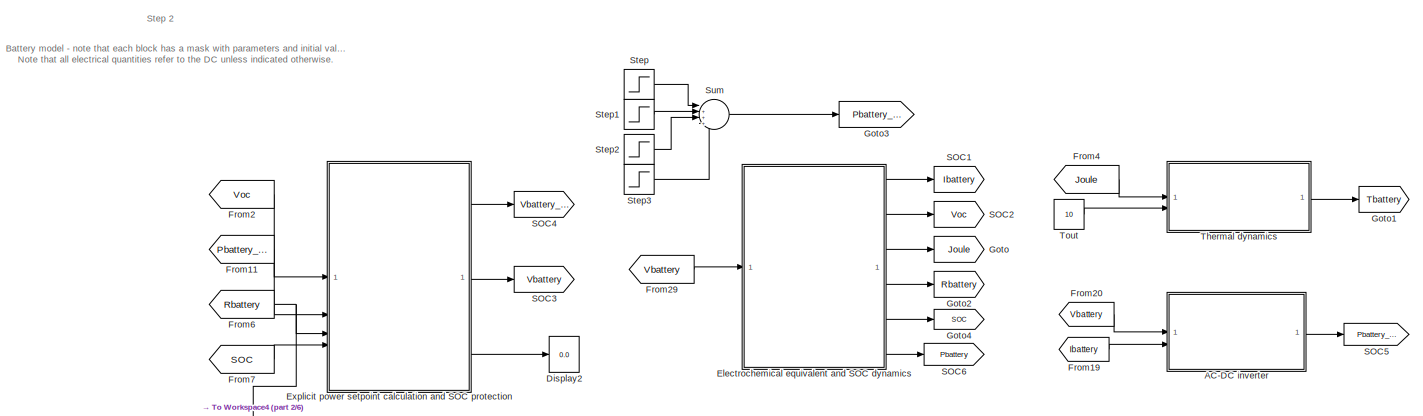
[diagram: root canvas - part 1/6, full width, top band]
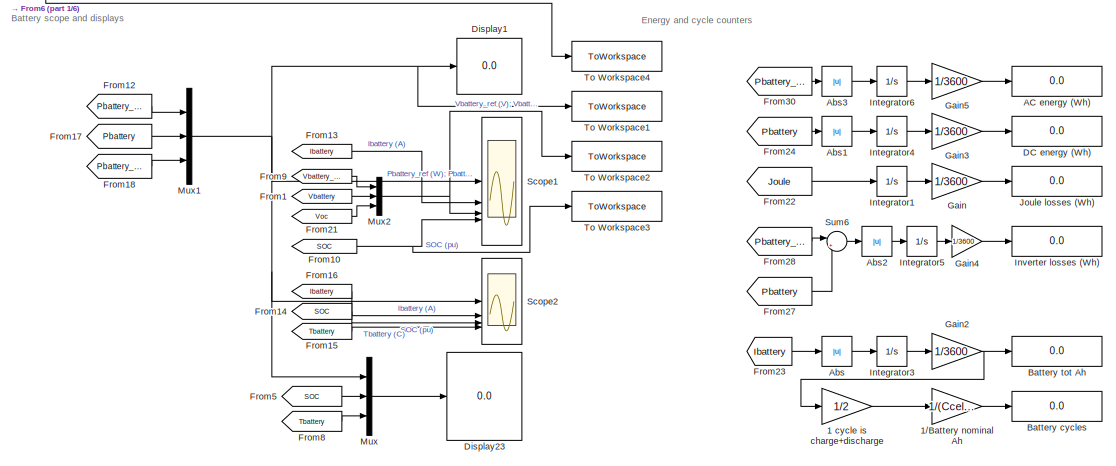
[diagram: root canvas - part 2/6, top center region]
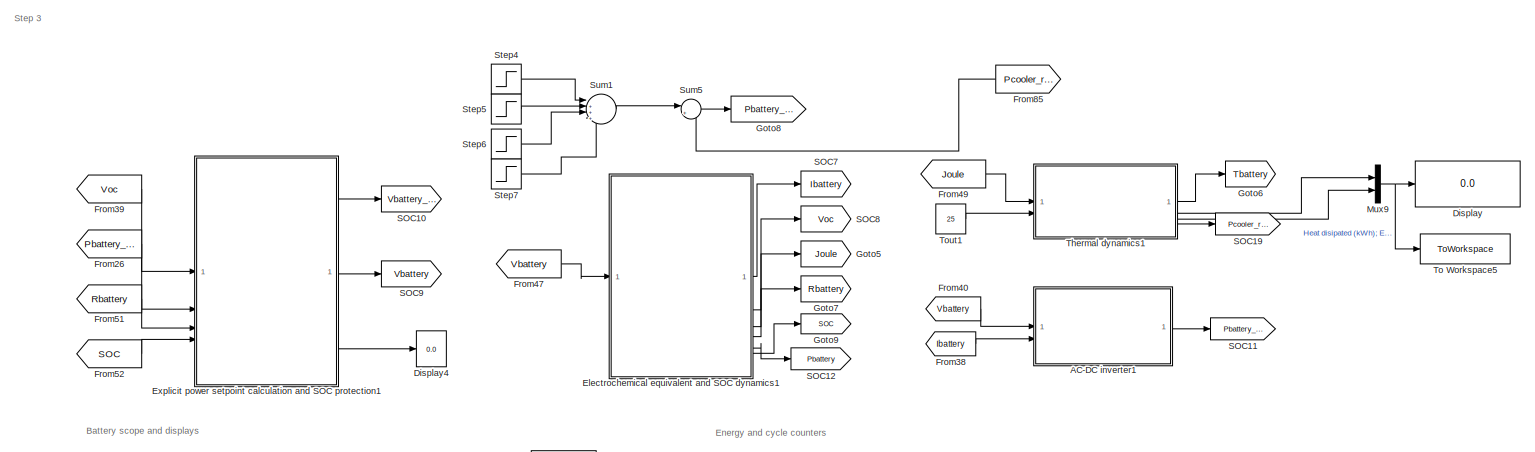
[diagram: root canvas - part 3/6, full width, middle band]
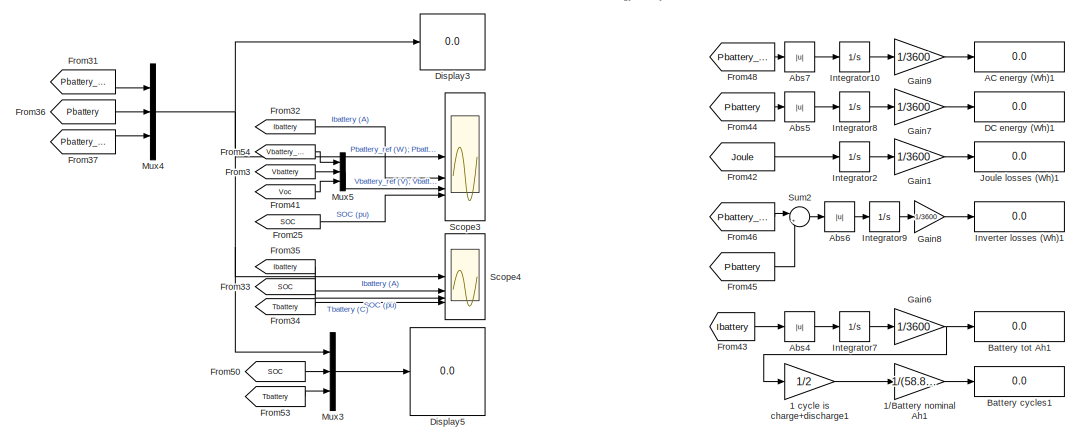
[diagram: root canvas - part 4/6, central region]
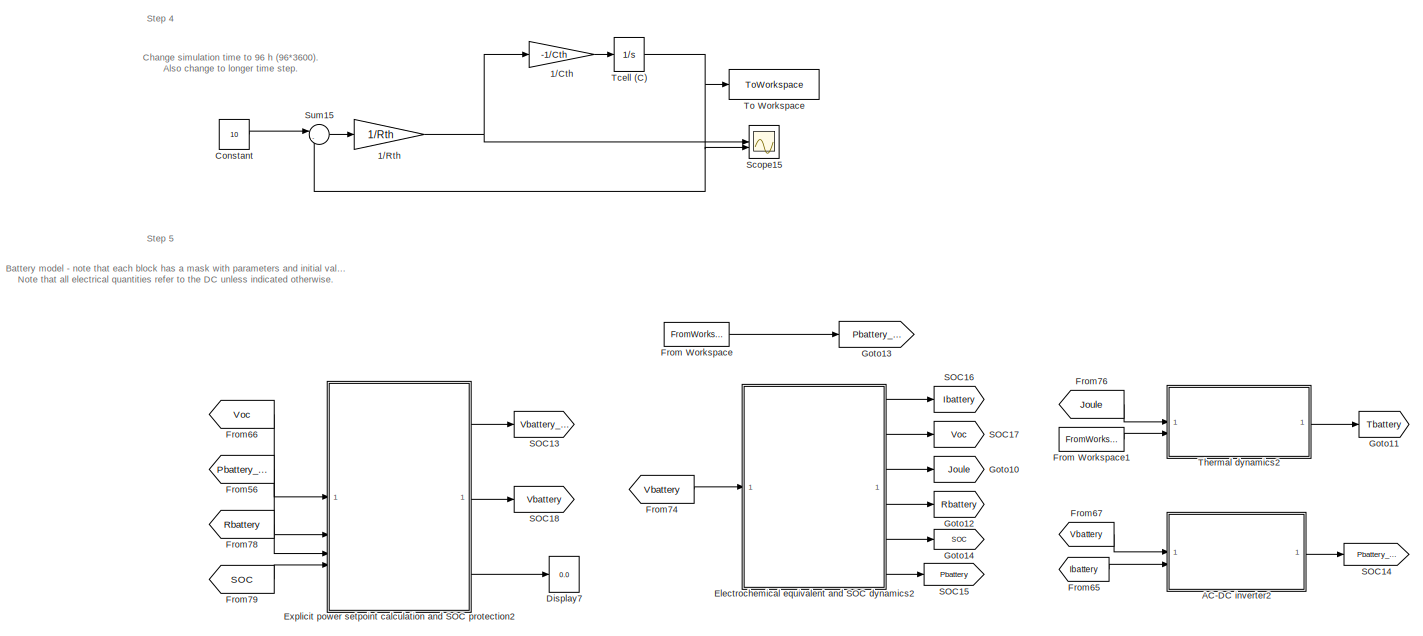
[diagram: root canvas - part 5/6, full width, bottom band]
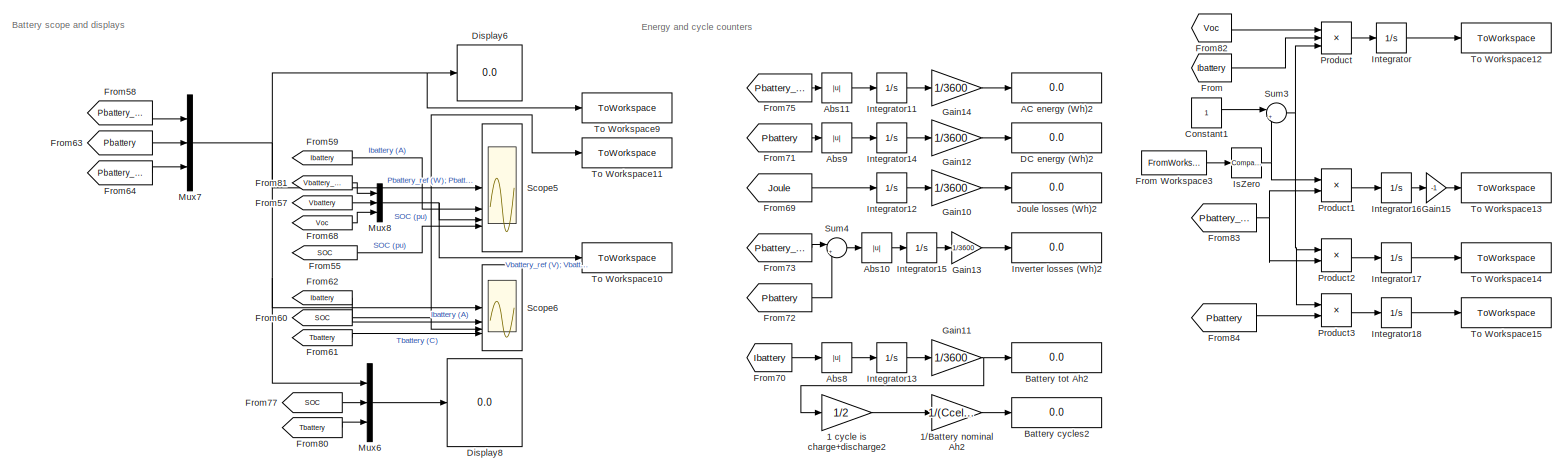
[diagram: root canvas - part 6/6, full width, bottom band]
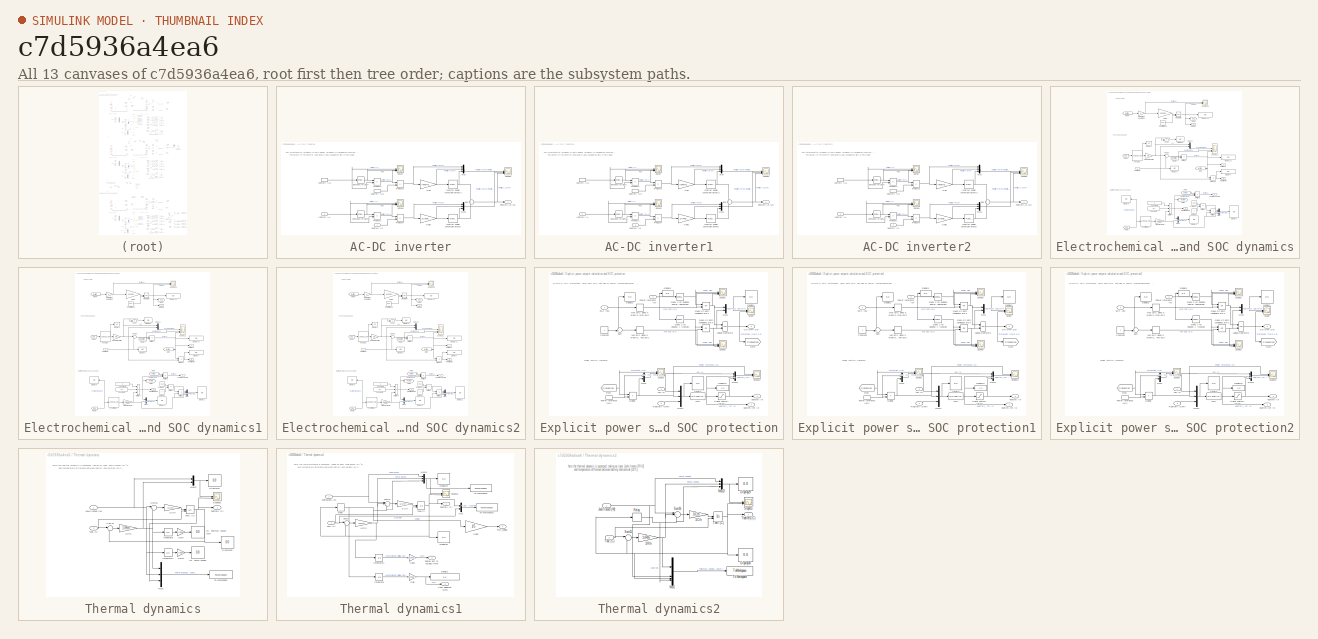
[diagram: thumbnail index - all 13 canvases of the model, root first then tree order]
MODEL slx_c7d5936a4ea6
KIND model
CONFIG AbsTol = auto
CONFIG EnableMultiTasking = off
CONFIG FixedStep = auto
CONFIG MaxStep = 0.1
CONFIG MinStep = auto
CONFIG RelTol = 1e-3
CONFIG SampleTimeConstraint = Unconstrained
CONFIG SolverName = VariableStepAuto
CONFIG StartTime = 0
CONFIG StopTime = 10860
WORKSPACE source: external: MAT-File  (data not in archive)
BLOCK [Gain] 1 cycle is charge+discharge
  Commented = on
  Gain = 1/2
BLOCK [Gain] 1 cycle is charge+discharge1
  Gain = 1/2
BLOCK [Gain] 1 cycle is charge+discharge2
  Commented = on
  Gain = 1/2
BLOCK [Gain] 1//Battery nominal Ah
  Commented = on
  Gain = 1/(Ccell*NumCellsParallel)
BLOCK [Gain] 1//Battery nominal Ah1
  Gain = 1/(58.8*3)
BLOCK [Gain] 1//Battery nominal Ah2
  Commented = on
  Gain = 1/(Ccell*NumCellsParallel)
BLOCK [Gain] 1//Cth
  Commented = on
  Gain = -1/Cth
BLOCK [Gain] 1//Rth
  Commented = on
  Gain = 1/Rth
BLOCK [Display] AC energy (Wh)
  Commented = on
  Decimation = 1
BLOCK [Display] AC energy (Wh)1
  Decimation = 1
BLOCK [Display] AC energy (Wh)2
  Commented = on
  Decimation = 1
BLOCK [SubSystem] AC-DC inverter
  Commented = on
BLOCK [Reference] AC-DC inverter/Compare To Zero  REF=simulink/Logic and Bit
Operations/Compare
To Zero
  SourceBlock = simulink/Logic and Bit\nOperations/Compare\nTo Zero
  SourceType = Compare To Zero
BLOCK [Reference] AC-DC inverter/Compare To Zero1  REF=simulink/Logic and Bit
Operations/Compare
To Zero
  SourceBlock = simulink/Logic and Bit\nOperations/Compare\nTo Zero
  SourceType = Compare To Zero
BLOCK [Gain] AC-DC inverter/Gain
  Gain = Inverter_Efficiency
BLOCK [Gain] AC-DC inverter/Gain1
  Gain = 1/Inverter_Efficiency
BLOCK [Inport] AC-DC inverter/Ibattery (A)
  Port = 2
BLOCK [InportShadow] AC-DC inverter/Ibattery (A)1
  Port = 2
BLOCK [TransportDelay] AC-DC inverter/Inverter power conversion latency
  DelayTime = Inverter_latency
BLOCK [TransportDelay] AC-DC inverter/Inverter power conversion latency1
  DelayTime = Inverter_latency
BLOCK [Mux] AC-DC inverter/Mux
  DisplayOption = bar
  Inputs = 3
BLOCK [Mux] AC-DC inverter/Mux1
  DisplayOption = bar
  Inputs = 3
BLOCK [Outport] AC-DC inverter/Pbattery_AC (W)
BLOCK [Product] AC-DC inverter/Product1
BLOCK [Product] AC-DC inverter/Product2
BLOCK [Product] AC-DC inverter/Product3
BLOCK [Product] AC-DC inverter/Product4
BLOCK [Scope] AC-DC inverter/Scope
  Floating = off
  NumInputPorts = 3
  ScopeSpecificationString = Simulink.scopes.TimeScopeBlockCfg('CurrentConfiguration', extmgr.ConfigurationSet(extmgr.Configuration('Core','General UI',true),extmgr.Configuration('Core','Source UI',true),extmgr.Configuration('Sources','WiredSimulink',true,'DataLoggingVariableName','ScopeData1'),extmgr.Configuration('Visuals','Time Domain',true,'SerializedDisplays',{struct('MinYLimReal','-46.70136','MaxYLimReal','51.08911','YL...<+2713ch>  <repeated x3 — deduplicated; at blocks: Scope>
BLOCK [Scope] AC-DC inverter/Scope1
  Floating = off
  NumInputPorts = 3
  ScopeSpecificationString = Simulink.scopes.TimeScopeBlockCfg('CurrentConfiguration', extmgr.ConfigurationSet(extmgr.Configuration('Core','General UI',true),extmgr.Configuration('Core','Source UI',true),extmgr.Configuration('Sources','WiredSimulink',true,'DataLoggingVariableName','ScopeData2'),extmgr.Configuration('Visuals','Time Domain',true,'SerializedDisplays',{struct('MinYLimReal','-46.70136','MaxYLimReal','51.08911','YL...<+2681ch>  <repeated x3 — deduplicated; at blocks: Scope1>
BLOCK [Scope] AC-DC inverter/Scope2
  Floating = off
  NumInputPorts = 3
  ScopeSpecificationString = Simulink.scopes.TimeScopeBlockCfg('CurrentConfiguration', extmgr.ConfigurationSet(extmgr.Configuration('Core','General UI',true),extmgr.Configuration('Core','Source UI',true),extmgr.Configuration('Sources','WiredSimulink',true,'DataLoggingVariableName','ScopeData3'),extmgr.Configuration('Visuals','Time Domain',true,'SerializedDisplays',{struct('MinYLimReal','-1375.00000','MaxYLimReal','12375.00000...<+3139ch>  <repeated x3 — deduplicated; at blocks: Scope2>
BLOCK [Sum] AC-DC inverter/Sum
BLOCK [Inport] AC-DC inverter/Vbattery (V)
BLOCK [InportShadow] AC-DC inverter/Vbattery (V)1
BLOCK [SubSystem] AC-DC inverter1
BLOCK [Reference] AC-DC inverter1/Compare To Zero  REF=simulink/Logic and Bit
Operations/Compare
To Zero
  SourceBlock = simulink/Logic and Bit\nOperations/Compare\nTo Zero
  SourceType = Compare To Zero
BLOCK [Reference] AC-DC inverter1/Compare To Zero1  REF=simulink/Logic and Bit
Operations/Compare
To Zero
  SourceBlock = simulink/Logic and Bit\nOperations/Compare\nTo Zero
  SourceType = Compare To Zero
BLOCK [Gain] AC-DC inverter1/Gain
  Gain = Inverter_Efficiency
BLOCK [Gain] AC-DC inverter1/Gain1
  Gain = 1/Inverter_Efficiency
BLOCK [Inport] AC-DC inverter1/Ibattery (A)
  Port = 2
BLOCK [InportShadow] AC-DC inverter1/Ibattery (A)1
  Port = 2
BLOCK [TransportDelay] AC-DC inverter1/Inverter power conversion latency
  DelayTime = Inverter_latency
BLOCK [TransportDelay] AC-DC inverter1/Inverter power conversion latency1
  DelayTime = Inverter_latency
BLOCK [Mux] AC-DC inverter1/Mux
  DisplayOption = bar
  Inputs = 3
BLOCK [Mux] AC-DC inverter1/Mux1
  DisplayOption = bar
  Inputs = 3
BLOCK [Outport] AC-DC inverter1/Pbattery_AC (W)
BLOCK [Product] AC-DC inverter1/Product1
BLOCK [Product] AC-DC inverter1/Product2
BLOCK [Product] AC-DC inverter1/Product3
BLOCK [Product] AC-DC inverter1/Product4
BLOCK [Scope] AC-DC inverter1/Scope
  Floating = off
  NumInputPorts = 3
BLOCK [Scope] AC-DC inverter1/Scope1
  Floating = off
  NumInputPorts = 3
BLOCK [Scope] AC-DC inverter1/Scope2
  Floating = off
  NumInputPorts = 3
BLOCK [Sum] AC-DC inverter1/Sum
BLOCK [Inport] AC-DC inverter1/Vbattery (V)
BLOCK [InportShadow] AC-DC inverter1/Vbattery (V)1
BLOCK [SubSystem] AC-DC inverter2
  Commented = on
BLOCK [Reference] AC-DC inverter2/Compare To Zero  REF=simulink/Logic and Bit
Operations/Compare
To Zero
  SourceBlock = simulink/Logic and Bit\nOperations/Compare\nTo Zero
  SourceType = Compare To Zero
BLOCK [Reference] AC-DC inverter2/Compare To Zero1  REF=simulink/Logic and Bit
Operations/Compare
To Zero
  SourceBlock = simulink/Logic and Bit\nOperations/Compare\nTo Zero
  SourceType = Compare To Zero
BLOCK [Gain] AC-DC inverter2/Gain
  Gain = Inverter_Efficiency
BLOCK [Gain] AC-DC inverter2/Gain1
  Gain = 1/Inverter_Efficiency
BLOCK [Inport] AC-DC inverter2/Ibattery (A)
  Port = 2
BLOCK [InportShadow] AC-DC inverter2/Ibattery (A)1
  Port = 2
BLOCK [TransportDelay] AC-DC inverter2/Inverter power conversion latency
  DelayTime = Inverter_latency
BLOCK [TransportDelay] AC-DC inverter2/Inverter power conversion latency1
  DelayTime = Inverter_latency
BLOCK [Mux] AC-DC inverter2/Mux
  DisplayOption = bar
  Inputs = 3
BLOCK [Mux] AC-DC inverter2/Mux1
  DisplayOption = bar
  Inputs = 3
BLOCK [Outport] AC-DC inverter2/Pbattery_AC (W)
BLOCK [Product] AC-DC inverter2/Product1
BLOCK [Product] AC-DC inverter2/Product2
BLOCK [Product] AC-DC inverter2/Product3
BLOCK [Product] AC-DC inverter2/Product4
BLOCK [Scope] AC-DC inverter2/Scope
  Floating = off
  NumInputPorts = 3
BLOCK [Scope] AC-DC inverter2/Scope1
  Floating = off
  NumInputPorts = 3
BLOCK [Scope] AC-DC inverter2/Scope2
  Floating = off
  NumInputPorts = 3
BLOCK [Sum] AC-DC inverter2/Sum
BLOCK [Inport] AC-DC inverter2/Vbattery (V)
BLOCK [InportShadow] AC-DC inverter2/Vbattery (V)1
BLOCK [Abs] Abs
  Commented = on
  SaturateOnIntegerOverflow = off
BLOCK [Abs] Abs1
  Commented = on
  SaturateOnIntegerOverflow = off
BLOCK [Abs] Abs10
  Commented = on
  SaturateOnIntegerOverflow = off
BLOCK [Abs] Abs11
  Commented = on
  SaturateOnIntegerOverflow = off
BLOCK [Abs] Abs2
  Commented = on
  SaturateOnIntegerOverflow = off
BLOCK [Abs] Abs3
  Commented = on
  SaturateOnIntegerOverflow = off
BLOCK [Abs] Abs4
  SaturateOnIntegerOverflow = off
BLOCK [Abs] Abs5
  SaturateOnIntegerOverflow = off
BLOCK [Abs] Abs6
  SaturateOnIntegerOverflow = off
BLOCK [Abs] Abs7
  SaturateOnIntegerOverflow = off
BLOCK [Abs] Abs8
  Commented = on
  SaturateOnIntegerOverflow = off
BLOCK [Abs] Abs9
  Commented = on
  SaturateOnIntegerOverflow = off
BLOCK [Display] Battery cycles
  Commented = on
  Decimation = 1
BLOCK [Display] Battery cycles1
  Decimation = 1
BLOCK [Display] Battery cycles2
  Commented = on
  Decimation = 1
BLOCK [Display] Battery tot Ah
  Commented = on
  Decimation = 1
BLOCK [Display] Battery tot Ah1
  Decimation = 1
BLOCK [Display] Battery tot Ah2
  Commented = on
  Decimation = 1
BLOCK [Constant] Constant
  Commented = on
  Value = 10
BLOCK [Constant] Constant1
  Commented = on
BLOCK [Display] DC energy (Wh)
  Commented = on
  Decimation = 1
BLOCK [Display] DC energy (Wh)1
  Decimation = 1
BLOCK [Display] DC energy (Wh)2
  Commented = on
  Decimation = 1
BLOCK [Display] Display
  Decimation = 2
  Format = short_e
BLOCK [Display] Display1
  Commented = on
  Decimation = 1
BLOCK [Display] Display2
  Commented = on
  Decimation = 1
BLOCK [Display] Display23
  Commented = on
  Decimation = 1
BLOCK [Display] Display3
  Decimation = 1
BLOCK [Display] Display4
  Decimation = 1
BLOCK [Display] Display5
  Decimation = 1
BLOCK [Display] Display6
  Commented = on
  Decimation = 1
BLOCK [Display] Display7
  Commented = on
  Decimation = 1
BLOCK [Display] Display8
  Commented = on
  Decimation = 1
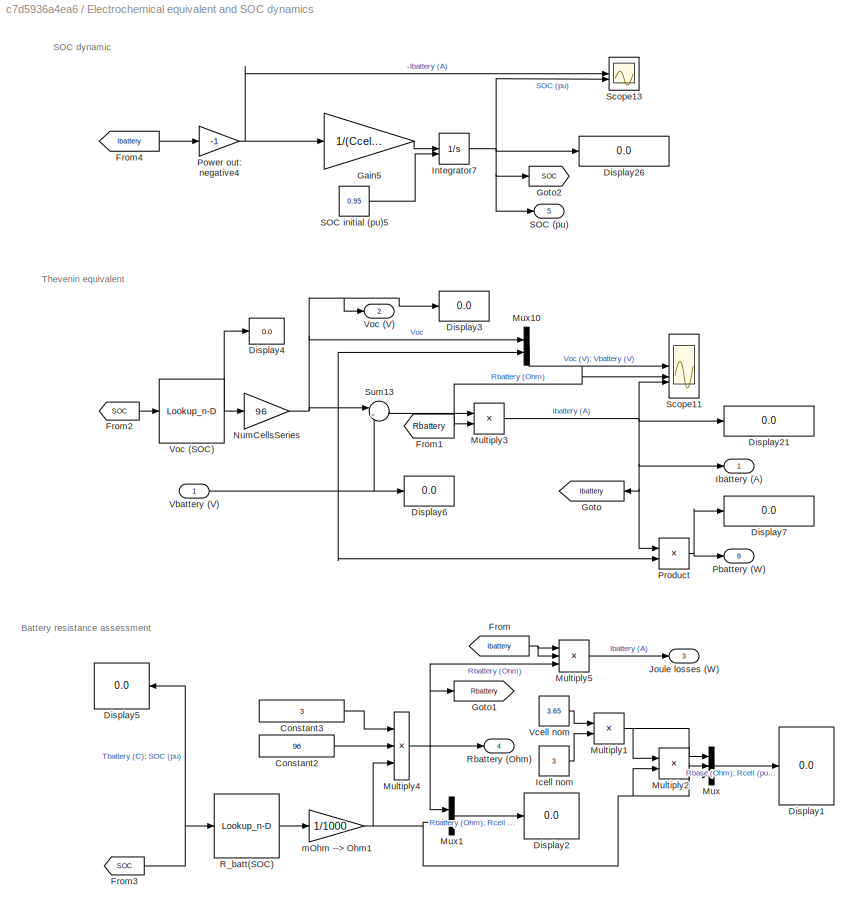
BLOCK [SubSystem] Electrochemical equivalent and SOC dynamics
  Commented = on
BLOCK [Constant] Electrochemical equivalent and SOC dynamics/Constant2
  Value = 96
BLOCK [Constant] Electrochemical equivalent and SOC dynamics/Constant3
  Value = 3
BLOCK [Display] Electrochemical equivalent and SOC dynamics/Display1
  Decimation = 1
BLOCK [Display] Electrochemical equivalent and SOC dynamics/Display2
  Decimation = 1
BLOCK [Display] Electrochemical equivalent and SOC dynamics/Display21
  Decimation = 1
BLOCK [Display] Electrochemical equivalent and SOC dynamics/Display26
  Decimation = 1
BLOCK [Display] Electrochemical equivalent and SOC dynamics/Display3
  Decimation = 1
BLOCK [Display] Electrochemical equivalent and SOC dynamics/Display4
  Decimation = 1
BLOCK [Display] Electrochemical equivalent and SOC dynamics/Display5
  Decimation = 1
BLOCK [Display] Electrochemical equivalent and SOC dynamics/Display6
  Decimation = 1
BLOCK [Display] Electrochemical equivalent and SOC dynamics/Display7
  Decimation = 1
BLOCK [From] Electrochemical equivalent and SOC dynamics/From
  GotoTag = Ibattery
BLOCK [From] Electrochemical equivalent and SOC dynamics/From1
  GotoTag = Rbattery
BLOCK [From] Electrochemical equivalent and SOC dynamics/From2
  GotoTag = SOC
BLOCK [From] Electrochemical equivalent and SOC dynamics/From3
  GotoTag = SOC
BLOCK [From] Electrochemical equivalent and SOC dynamics/From4
  GotoTag = Ibattery
BLOCK [Gain] Electrochemical equivalent and SOC dynamics/Gain5
  Gain = 1/(Ccell*NumCellsParallel*3600)
BLOCK [Goto] Electrochemical equivalent and SOC dynamics/Goto
  GotoTag = Ibattery
BLOCK [Goto] Electrochemical equivalent and SOC dynamics/Goto1
  GotoTag = Rbattery
BLOCK [Goto] Electrochemical equivalent and SOC dynamics/Goto2
  GotoTag = SOC
BLOCK [Outport] Electrochemical equivalent and SOC dynamics/Ibattery (A)
  VectorParamsAs1DForOutWhenUnconnected = off
BLOCK [Constant] Electrochemical equivalent and SOC dynamics/Icell nom
  Value = 3
BLOCK [Integrator] Electrochemical equivalent and SOC dynamics/Integrator7
  InitialCondition = 0.5
  InitialConditionSource = external
  ZeroCross = off
BLOCK [Outport] Electrochemical equivalent and SOC dynamics/Joule losses (W)
  Port = 3
  VectorParamsAs1DForOutWhenUnconnected = off
BLOCK [Product] Electrochemical equivalent and SOC dynamics/Multiply1
  Inputs = */
BLOCK [Product] Electrochemical equivalent and SOC dynamics/Multiply2
  Inputs = /*
BLOCK [Product] Electrochemical equivalent and SOC dynamics/Multiply3
  Inputs = */
BLOCK [Product] Electrochemical equivalent and SOC dynamics/Multiply4
  Inputs = /**
BLOCK [Product] Electrochemical equivalent and SOC dynamics/Multiply5
  Inputs = ***
BLOCK [Mux] Electrochemical equivalent and SOC dynamics/Mux
  DisplayOption = bar
  Inputs = 3
BLOCK [Mux] Electrochemical equivalent and SOC dynamics/Mux1
  DisplayOption = bar
  Inputs = 2
BLOCK [Mux] Electrochemical equivalent and SOC dynamics/Mux10
  DisplayOption = bar
  Inputs = 2
BLOCK [Gain] Electrochemical equivalent and SOC dynamics/NumCellsSeries
  Gain = 96
BLOCK [Outport] Electrochemical equivalent and SOC dynamics/Pbattery (W)
  Port = 6
  VectorParamsAs1DForOutWhenUnconnected = off
BLOCK [Gain] Electrochemical equivalent and SOC dynamics/Power out: negative4
  Gain = -1
BLOCK [Product] Electrochemical equivalent and SOC dynamics/Product
BLOCK [Lookup_n-D] Electrochemical equivalent and SOC dynamics/R_batt(SOC)
  BreakpointsForDimension1 = [0.03 0.05 0.067 0.117 0.165 0.21 0.256 0.303 0.35 0.397 0.444 0.486 0.53 0.575 0.617 0.661 0.705 0.749 0.791 0.833 0.873 0.914 0.945 0.97]
  InputPortMap = u0
  InternalRulePriority = Speed
  NumberOfTableDimensions = 1
  RndMeth = Simplest
  Table = [4.14 4.14 4.14 4.28 3.84 3.72 3.71 3.82 4.05 4.43 4.83 4.78 4.72 3.84 3.59 3.71 3.99 4.33 4.66 4.97 5.32 5.32 5.32 5.32]
BLOCK [Outport] Electrochemical equivalent and SOC dynamics/Rbattery (Ohm)
  Port = 4
  VectorParamsAs1DForOutWhenUnconnected = off
BLOCK [Outport] Electrochemical equivalent and SOC dynamics/SOC (pu)
  Port = 5
  VectorParamsAs1DForOutWhenUnconnected = off
BLOCK [Constant] Electrochemical equivalent and SOC dynamics/SOC initial (pu)5
  Value = 0.95
BLOCK [Scope] Electrochemical equivalent and SOC dynamics/Scope11
  Floating = off
  NumInputPorts = 3
  ScopeSpecificationString = Simulink.scopes.TimeScopeBlockCfg('CurrentConfiguration', extmgr.ConfigurationSet(extmgr.Configuration('Core','General UI',true),extmgr.Configuration('Core','Source UI',true),extmgr.Configuration('Sources','WiredSimulink',true,'DataLoggingVariableName','ScopeData1'),extmgr.Configuration('Visuals','Time Domain',true,'SerializedDisplays',{struct('MinYLimReal','221.45938','MaxYLimReal','418.83962','Y...<+2865ch>  <repeated x3 — deduplicated; at blocks: Scope11>
BLOCK [Scope] Electrochemical equivalent and SOC dynamics/Scope13
  Floating = off
  NumInputPorts = 2
  ScopeSpecificationString = Simulink.scopes.TimeScopeBlockCfg('CurrentConfiguration', extmgr.ConfigurationSet(extmgr.Configuration('Core','General UI',true),extmgr.Configuration('Core','Source UI',true),extmgr.Configuration('Sources','WiredSimulink',true,'DataLoggingVariableName','ScopeData2'),extmgr.Configuration('Visuals','Time Domain',true,'SerializedDisplays',{struct('MinYLimReal','-28.57','MaxYLimReal','-28.53554','YLab...<+2029ch>  <repeated x3 — deduplicated; at blocks: Scope13>
BLOCK [Sum] Electrochemical equivalent and SOC dynamics/Sum13
  Inputs = |+-
BLOCK [Inport] Electrochemical equivalent and SOC dynamics/Vbattery (V)
BLOCK [Constant] Electrochemical equivalent and SOC dynamics/Vcell nom
  Value = 3.65
BLOCK [Lookup_n-D] Electrochemical equivalent and SOC dynamics/Voc (SOC)
  BreakpointsForDimension1 = [0.03 0.05 0.067 0.117 0.165 0.21 0.256 0.303 0.35 0.397 0.444 0.486 0.53 0.575 0.617 0.661 0.705 0.749 0.791 0.833 0.873 0.914 0.945 0.97]
  InputPortMap = u0
  InternalRulePriority = Speed
  NumberOfTableDimensions = 1
  RndMeth = Simplest
  Table = [3.2 3.35 3.41 3.45 3.48 3.51 3.56 3.6 3.62 3.63 3.64 3.66 3.68 3.7 3.74 3.79 3.84 3.88 3.93 3.98 4.02 4.07 4.13 4.18]
BLOCK [Outport] Electrochemical equivalent and SOC dynamics/Voc (V)
  Port = 2
  VectorParamsAs1DForOutWhenUnconnected = off
BLOCK [Gain] Electrochemical equivalent and SOC dynamics/mOhm --> Ohm1
  Gain = 1/1000
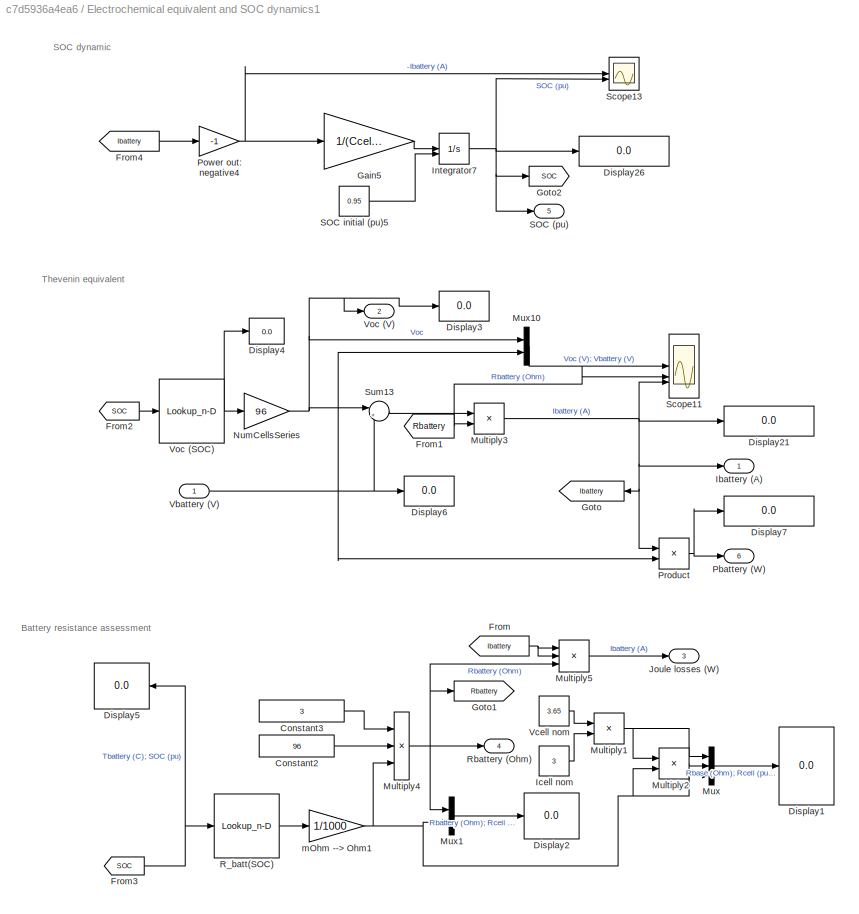
BLOCK [SubSystem] Electrochemical equivalent and SOC dynamics1
BLOCK [Constant] Electrochemical equivalent and SOC dynamics1/Constant2
  Value = 96
BLOCK [Constant] Electrochemical equivalent and SOC dynamics1/Constant3
  Value = 3
BLOCK [Display] Electrochemical equivalent and SOC dynamics1/Display1
  Decimation = 1
BLOCK [Display] Electrochemical equivalent and SOC dynamics1/Display2
  Decimation = 1
BLOCK [Display] Electrochemical equivalent and SOC dynamics1/Display21
  Decimation = 1
BLOCK [Display] Electrochemical equivalent and SOC dynamics1/Display26
  Decimation = 1
BLOCK [Display] Electrochemical equivalent and SOC dynamics1/Display3
  Decimation = 1
BLOCK [Display] Electrochemical equivalent and SOC dynamics1/Display4
  Decimation = 1
BLOCK [Display] Electrochemical equivalent and SOC dynamics1/Display5
  Decimation = 1
BLOCK [Display] Electrochemical equivalent and SOC dynamics1/Display6
  Decimation = 1
BLOCK [Display] Electrochemical equivalent and SOC dynamics1/Display7
  Decimation = 1
BLOCK [From] Electrochemical equivalent and SOC dynamics1/From
  GotoTag = Ibattery
BLOCK [From] Electrochemical equivalent and SOC dynamics1/From1
  GotoTag = Rbattery
BLOCK [From] Electrochemical equivalent and SOC dynamics1/From2
  GotoTag = SOC
BLOCK [From] Electrochemical equivalent and SOC dynamics1/From3
  GotoTag = SOC
BLOCK [From] Electrochemical equivalent and SOC dynamics1/From4
  GotoTag = Ibattery
BLOCK [Gain] Electrochemical equivalent and SOC dynamics1/Gain5
  Gain = 1/(Ccell*NumCellsParallel*3600)
BLOCK [Goto] Electrochemical equivalent and SOC dynamics1/Goto
  GotoTag = Ibattery
BLOCK [Goto] Electrochemical equivalent and SOC dynamics1/Goto1
  GotoTag = Rbattery
BLOCK [Goto] Electrochemical equivalent and SOC dynamics1/Goto2
  GotoTag = SOC
BLOCK [Outport] Electrochemical equivalent and SOC dynamics1/Ibattery (A)
  VectorParamsAs1DForOutWhenUnconnected = off
BLOCK [Constant] Electrochemical equivalent and SOC dynamics1/Icell nom
  Value = 3
BLOCK [Integrator] Electrochemical equivalent and SOC dynamics1/Integrator7
  InitialCondition = 0.5
  InitialConditionSource = external
  ZeroCross = off
BLOCK [Outport] Electrochemical equivalent and SOC dynamics1/Joule losses (W)
  Port = 3
  VectorParamsAs1DForOutWhenUnconnected = off
BLOCK [Product] Electrochemical equivalent and SOC dynamics1/Multiply1
  Inputs = */
BLOCK [Product] Electrochemical equivalent and SOC dynamics1/Multiply2
  Inputs = /*
BLOCK [Product] Electrochemical equivalent and SOC dynamics1/Multiply3
  Inputs = */
BLOCK [Product] Electrochemical equivalent and SOC dynamics1/Multiply4
  Inputs = /**
BLOCK [Product] Electrochemical equivalent and SOC dynamics1/Multiply5
  Inputs = ***
BLOCK [Mux] Electrochemical equivalent and SOC dynamics1/Mux
  DisplayOption = bar
  Inputs = 3
BLOCK [Mux] Electrochemical equivalent and SOC dynamics1/Mux1
  DisplayOption = bar
  Inputs = 2
BLOCK [Mux] Electrochemical equivalent and SOC dynamics1/Mux10
  DisplayOption = bar
  Inputs = 2
BLOCK [Gain] Electrochemical equivalent and SOC dynamics1/NumCellsSeries
  Gain = 96
BLOCK [Outport] Electrochemical equivalent and SOC dynamics1/Pbattery (W)
  Port = 6
  VectorParamsAs1DForOutWhenUnconnected = off
BLOCK [Gain] Electrochemical equivalent and SOC dynamics1/Power out: negative4
  Gain = -1
BLOCK [Product] Electrochemical equivalent and SOC dynamics1/Product
BLOCK [Lookup_n-D] Electrochemical equivalent and SOC dynamics1/R_batt(SOC)
  BreakpointsForDimension1 = [0.03 0.05 0.067 0.117 0.165 0.21 0.256 0.303 0.35 0.397 0.444 0.486 0.53 0.575 0.617 0.661 0.705 0.749 0.791 0.833 0.873 0.914 0.945 0.97]
  InputPortMap = u0
  InternalRulePriority = Speed
  NumberOfTableDimensions = 1
  RndMeth = Simplest
  Table = [4.14 4.14 4.14 4.28 3.84 3.72 3.71 3.82 4.05 4.43 4.83 4.78 4.72 3.84 3.59 3.71 3.99 4.33 4.66 4.97 5.32 5.32 5.32 5.32]
BLOCK [Outport] Electrochemical equivalent and SOC dynamics1/Rbattery (Ohm)
  Port = 4
  VectorParamsAs1DForOutWhenUnconnected = off
BLOCK [Outport] Electrochemical equivalent and SOC dynamics1/SOC (pu)
  Port = 5
  VectorParamsAs1DForOutWhenUnconnected = off
BLOCK [Constant] Electrochemical equivalent and SOC dynamics1/SOC initial (pu)5
  Value = 0.95
BLOCK [Scope] Electrochemical equivalent and SOC dynamics1/Scope11
  Floating = off
  NumInputPorts = 3
BLOCK [Scope] Electrochemical equivalent and SOC dynamics1/Scope13
  Floating = off
  NumInputPorts = 2
BLOCK [Sum] Electrochemical equivalent and SOC dynamics1/Sum13
  Inputs = |+-
BLOCK [Inport] Electrochemical equivalent and SOC dynamics1/Vbattery (V)
BLOCK [Constant] Electrochemical equivalent and SOC dynamics1/Vcell nom
  Value = 3.65
BLOCK [Lookup_n-D] Electrochemical equivalent and SOC dynamics1/Voc (SOC)
  BreakpointsForDimension1 = [0.03 0.05 0.067 0.117 0.165 0.21 0.256 0.303 0.35 0.397 0.444 0.486 0.53 0.575 0.617 0.661 0.705 0.749 0.791 0.833 0.873 0.914 0.945 0.97]
  InputPortMap = u0
  InternalRulePriority = Speed
  NumberOfTableDimensions = 1
  RndMeth = Simplest
  Table = [3.2 3.35 3.41 3.45 3.48 3.51 3.56 3.6 3.62 3.63 3.64 3.66 3.68 3.7 3.74 3.79 3.84 3.88 3.93 3.98 4.02 4.07 4.13 4.18]
BLOCK [Outport] Electrochemical equivalent and SOC dynamics1/Voc (V)
  Port = 2
  VectorParamsAs1DForOutWhenUnconnected = off
BLOCK [Gain] Electrochemical equivalent and SOC dynamics1/mOhm --> Ohm1
  Gain = 1/1000
BLOCK [SubSystem] Electrochemical equivalent and SOC dynamics2
  Commented = on
BLOCK [Constant] Electrochemical equivalent and SOC dynamics2/Constant2
  Value = 96
BLOCK [Constant] Electrochemical equivalent and SOC dynamics2/Constant3
  Value = 3
BLOCK [Display] Electrochemical equivalent and SOC dynamics2/Display1
  Decimation = 1
BLOCK [Display] Electrochemical equivalent and SOC dynamics2/Display2
  Decimation = 1
BLOCK [Display] Electrochemical equivalent and SOC dynamics2/Display21
  Decimation = 1
BLOCK [Display] Electrochemical equivalent and SOC dynamics2/Display26
  Decimation = 1
BLOCK [Display] Electrochemical equivalent and SOC dynamics2/Display3
  Decimation = 1
BLOCK [Display] Electrochemical equivalent and SOC dynamics2/Display4
  Decimation = 1
BLOCK [Display] Electrochemical equivalent and SOC dynamics2/Display5
  Decimation = 1
BLOCK [Display] Electrochemical equivalent and SOC dynamics2/Display6
  Decimation = 1
BLOCK [Display] Electrochemical equivalent and SOC dynamics2/Display7
  Decimation = 1
BLOCK [From] Electrochemical equivalent and SOC dynamics2/From
  GotoTag = Ibattery
BLOCK [From] Electrochemical equivalent and SOC dynamics2/From1
  GotoTag = Rbattery
BLOCK [From] Electrochemical equivalent and SOC dynamics2/From2
  GotoTag = SOC
BLOCK [From] Electrochemical equivalent and SOC dynamics2/From3
  GotoTag = SOC
BLOCK [From] Electrochemical equivalent and SOC dynamics2/From4
  GotoTag = Ibattery
BLOCK [Gain] Electrochemical equivalent and SOC dynamics2/Gain5
  Gain = 1/(Ccell*NumCellsParallel*3600)
BLOCK [Goto] Electrochemical equivalent and SOC dynamics2/Goto
  GotoTag = Ibattery
BLOCK [Goto] Electrochemical equivalent and SOC dynamics2/Goto1
  GotoTag = Rbattery
BLOCK [Goto] Electrochemical equivalent and SOC dynamics2/Goto2
  GotoTag = SOC
BLOCK [Outport] Electrochemical equivalent and SOC dynamics2/Ibattery (A)
  VectorParamsAs1DForOutWhenUnconnected = off
BLOCK [Constant] Electrochemical equivalent and SOC dynamics2/Icell nom
  Value = 3
BLOCK [Integrator] Electrochemical equivalent and SOC dynamics2/Integrator7
  InitialCondition = 0.5
  InitialConditionSource = external
  ZeroCross = off
BLOCK [Outport] Electrochemical equivalent and SOC dynamics2/Joule losses (W)
  Port = 3
  VectorParamsAs1DForOutWhenUnconnected = off
BLOCK [Product] Electrochemical equivalent and SOC dynamics2/Multiply1
  Inputs = */
BLOCK [Product] Electrochemical equivalent and SOC dynamics2/Multiply2
  Inputs = /*
BLOCK [Product] Electrochemical equivalent and SOC dynamics2/Multiply3
  Inputs = */
BLOCK [Product] Electrochemical equivalent and SOC dynamics2/Multiply4
  Inputs = /**
BLOCK [Product] Electrochemical equivalent and SOC dynamics2/Multiply5
  Inputs = ***
BLOCK [Mux] Electrochemical equivalent and SOC dynamics2/Mux
  DisplayOption = bar
  Inputs = 3
BLOCK [Mux] Electrochemical equivalent and SOC dynamics2/Mux1
  DisplayOption = bar
  Inputs = 2
BLOCK [Mux] Electrochemical equivalent and SOC dynamics2/Mux10
  DisplayOption = bar
  Inputs = 2
BLOCK [Gain] Electrochemical equivalent and SOC dynamics2/NumCellsSeries
  Gain = 96
BLOCK [Outport] Electrochemical equivalent and SOC dynamics2/Pbattery (W)
  Port = 6
  VectorParamsAs1DForOutWhenUnconnected = off
BLOCK [Gain] Electrochemical equivalent and SOC dynamics2/Power out: negative4
  Gain = -1
BLOCK [Product] Electrochemical equivalent and SOC dynamics2/Product
BLOCK [Lookup_n-D] Electrochemical equivalent and SOC dynamics2/R_batt(SOC)
  BreakpointsForDimension1 = [0.03 0.05 0.067 0.117 0.165 0.21 0.256 0.303 0.35 0.397 0.444 0.486 0.53 0.575 0.617 0.661 0.705 0.749 0.791 0.833 0.873 0.914 0.945 0.97]
  InputPortMap = u0
  InternalRulePriority = Speed
  NumberOfTableDimensions = 1
  RndMeth = Simplest
  Table = [4.14 4.14 4.14 4.28 3.84 3.72 3.71 3.82 4.05 4.43 4.83 4.78 4.72 3.84 3.59 3.71 3.99 4.33 4.66 4.97 5.32 5.32 5.32 5.32]
BLOCK [Outport] Electrochemical equivalent and SOC dynamics2/Rbattery (Ohm)
  Port = 4
  VectorParamsAs1DForOutWhenUnconnected = off
BLOCK [Outport] Electrochemical equivalent and SOC dynamics2/SOC (pu)
  Port = 5
  VectorParamsAs1DForOutWhenUnconnected = off
BLOCK [Constant] Electrochemical equivalent and SOC dynamics2/SOC initial (pu)5
  Value = 0.95
BLOCK [Scope] Electrochemical equivalent and SOC dynamics2/Scope11
  Floating = off
  NumInputPorts = 3
BLOCK [Scope] Electrochemical equivalent and SOC dynamics2/Scope13
  Floating = off
  NumInputPorts = 2
BLOCK [Sum] Electrochemical equivalent and SOC dynamics2/Sum13
  Inputs = |+-
BLOCK [Inport] Electrochemical equivalent and SOC dynamics2/Vbattery (V)
BLOCK [Constant] Electrochemical equivalent and SOC dynamics2/Vcell nom
  Value = 3.65
BLOCK [Lookup_n-D] Electrochemical equivalent and SOC dynamics2/Voc (SOC)
  BreakpointsForDimension1 = [0.03 0.05 0.067 0.117 0.165 0.21 0.256 0.303 0.35 0.397 0.444 0.486 0.53 0.575 0.617 0.661 0.705 0.749 0.791 0.833 0.873 0.914 0.945 0.97]
  InputPortMap = u0
  InternalRulePriority = Speed
  NumberOfTableDimensions = 1
  RndMeth = Simplest
  Table = [3.2 3.35 3.41 3.45 3.48 3.51 3.56 3.6 3.62 3.63 3.64 3.66 3.68 3.7 3.74 3.79 3.84 3.88 3.93 3.98 4.02 4.07 4.13 4.18]
BLOCK [Outport] Electrochemical equivalent and SOC dynamics2/Voc (V)
  Port = 2
  VectorParamsAs1DForOutWhenUnconnected = off
BLOCK [Gain] Electrochemical equivalent and SOC dynamics2/mOhm --> Ohm1
  Gain = 1/1000
BLOCK [SubSystem] Explicit power setpoint calculation and SOC protection
  Commented = on
BLOCK [Constant] Explicit power setpoint calculation and SOC protection/Constant
BLOCK [Display] Explicit power setpoint calculation and SOC protection/Display1
  Decimation = 1
BLOCK [Display] Explicit power setpoint calculation and SOC protection/Display2
  Decimation = 1
BLOCK [Display] Explicit power setpoint calculation and SOC protection/Display24
  Decimation = 1
BLOCK [Display] Explicit power setpoint calculation and SOC protection/Display3
  Decimation = 1
BLOCK [Display] Explicit power setpoint calculation and SOC protection/Display4
  Decimation = 1
BLOCK [Fcn] Explicit power setpoint calculation and SOC protection/Fcn1
  Expr = (u(1)+sqrt(u(1)^2-4*u(3)*u(2)))/2
BLOCK [From] Explicit power setpoint calculation and SOC protection/From
  GotoTag = Protection
BLOCK [Logic] Explicit power setpoint calculation and SOC protection/Gives 0 if both conditions are 0 
  AllPortsSameDT = off
  Operator = OR
  OutDataTypeStr = boolean
BLOCK [Reference] Explicit power setpoint calculation and SOC protection/Gives 1 for negative power (charge)  REF=simulink/Logic and Bit
Operations/Compare
To Zero
  SourceBlock = simulink/Logic and Bit\nOperations/Compare\nTo Zero
  SourceType = Compare To Zero
BLOCK [Reference] Explicit power setpoint calculation and SOC protection/Gives 1 for positive power (discharge)  REF=simulink/Logic and Bit
Operations/Compare
To Zero
  SourceBlock = simulink/Logic and Bit\nOperations/Compare\nTo Zero
  SourceType = Compare To Zero
BLOCK [Goto] Explicit power setpoint calculation and SOC protection/Goto
  GotoTag = Protection
BLOCK [Logic] Explicit power setpoint calculation and SOC protection/Logical Operator2
  AllPortsSameDT = off
  OutDataTypeStr = boolean
BLOCK [Relay] Explicit power setpoint calculation and SOC protection/Max SOC gives 0 when above max SOC 
  OffOutputValue = 1
  OffSwitchValue = SOC_Max-0.01
  OnOutputValue = 0
  OnSwitchValue = SOC_Max
BLOCK [Relay] Explicit power setpoint calculation and SOC protection/Min SOC gives 0 when below min SOC
  OffOutputValue = 1
  OffSwitchValue = 1-(SOC_Min+0.01)
  OnOutputValue = 0
  OnSwitchValue = 1-SOC_Min
BLOCK [Product] Explicit power setpoint calculation and SOC protection/Multiply
BLOCK [Mux] Explicit power setpoint calculation and SOC protection/Mux1
  DisplayOption = bar
  Inputs = 2
BLOCK [Mux] Explicit power setpoint calculation and SOC protection/Mux11
  DisplayOption = bar
  Inputs = 3
BLOCK [Mux] Explicit power setpoint calculation and SOC protection/Mux12
  DisplayOption = bar
  Inputs = 3
BLOCK [Mux] Explicit power setpoint calculation and SOC protection/Mux2
  DisplayOption = bar
  Inputs = 2
BLOCK [Outport] Explicit power setpoint calculation and SOC protection/ON//OFF (1//0)
  Port = 3
  VectorParamsAs1DForOutWhenUnconnected = off
BLOCK [Inport] Explicit power setpoint calculation and SOC protection/Power reference (W)
  Port = 2
BLOCK [InportShadow] Explicit power setpoint calculation and SOC protection/Power reference (W)1
  Port = 2
BLOCK [Inport] Explicit power setpoint calculation and SOC protection/Rbattery (Ohm)
  Port = 3
BLOCK [Inport] Explicit power setpoint calculation and SOC protection/SOC (pu)
  Port = 4
BLOCK [Scope] Explicit power setpoint calculation and SOC protection/Scope
  Floating = off
  NumInputPorts = 2
  ScopeSpecificationString = Simulink.scopes.TimeScopeBlockCfg('CurrentConfiguration', extmgr.ConfigurationSet(extmgr.Configuration('Core','General UI',true),extmgr.Configuration('Core','Source UI',true),extmgr.Configuration('Sources','WiredSimulink',true,'DataLoggingVariableName','ScopeData1'),extmgr.Configuration('Visuals','Time Domain',true,'SerializedDisplays',{struct('MinYLimReal','-0.125','MaxYLimReal','1.125','YLabelRe...<+2010ch>  <repeated x3 — deduplicated; at blocks: Scope>
BLOCK [Scope] Explicit power setpoint calculation and SOC protection/Scope1
  Floating = off
  NumInputPorts = 2
  ScopeSpecificationString = Simulink.scopes.TimeScopeBlockCfg('CurrentConfiguration', extmgr.ConfigurationSet(extmgr.Configuration('Core','General UI',true),extmgr.Configuration('Core','Source UI',true),extmgr.Configuration('Sources','WiredSimulink',true,'DataLoggingVariableName','ScopeData2'),extmgr.Configuration('Visuals','Time Domain',true,'SerializedDisplays',{struct('MinYLimReal','-10','MaxYLimReal','10','YLabelReal',''...<+2092ch>  <repeated x3 — deduplicated; at blocks: Scope1>
BLOCK [Scope] Explicit power setpoint calculation and SOC protection/Scope12
  Floating = off
  NumInputPorts = 2
  ScopeSpecificationString = Simulink.scopes.TimeScopeBlockCfg('CurrentConfiguration', extmgr.ConfigurationSet(extmgr.Configuration('Core','General UI',true),extmgr.Configuration('Core','Source UI',true),extmgr.Configuration('Sources','WiredSimulink',true,'DataLoggingVariableName','ScopeData2'),extmgr.Configuration('Visuals','Time Domain',true,'SerializedDisplays',{struct('MinYLimReal','-13750.00000','MaxYLimReal','13750.0000...<+2181ch>  <repeated x3 — deduplicated; at blocks: Scope12>
BLOCK [Scope] Explicit power setpoint calculation and SOC protection/Scope2
  Floating = off
  NumInputPorts = 3
  ScopeSpecificationString = Simulink.scopes.TimeScopeBlockCfg('CurrentConfiguration', extmgr.ConfigurationSet(extmgr.Configuration('Core','General UI',true),extmgr.Configuration('Core','Source UI',true),extmgr.Configuration('Sources','WiredSimulink',true,'DataLoggingVariableName','ScopeData1'),extmgr.Configuration('Visuals','Time Domain',true,'SerializedDisplays',{struct('MinYLimReal','-0.125','MaxYLimReal','1.125','YLabelRe...<+2750ch>  <repeated x3 — deduplicated; at blocks: Scope2>
BLOCK [Scope] Explicit power setpoint calculation and SOC protection/Scope3
  Floating = off
  NumInputPorts = 3
  ScopeSpecificationString = Simulink.scopes.TimeScopeBlockCfg('CurrentConfiguration', extmgr.ConfigurationSet(extmgr.Configuration('Core','General UI',true),extmgr.Configuration('Core','Source UI',true),extmgr.Configuration('Sources','WiredSimulink',true,'DataLoggingVariableName','ScopeData2'),extmgr.Configuration('Visuals','Time Domain',true,'SerializedDisplays',{struct('MinYLimReal','-0.125','MaxYLimReal','1.125','YLabelRe...<+2729ch>  <repeated x3 — deduplicated; at blocks: Scope3>
BLOCK [Sum] Explicit power setpoint calculation and SOC protection/Sum
  Inputs = -+|
BLOCK [Outport] Explicit power setpoint calculation and SOC protection/Vbattery (V)
  Port = 2
  VectorParamsAs1DForOutWhenUnconnected = off
BLOCK [Outport] Explicit power setpoint calculation and SOC protection/Vbattery_ref (V)
  VectorParamsAs1DForOutWhenUnconnected = off
BLOCK [Inport] Explicit power setpoint calculation and SOC protection/Voc (V)
BLOCK [Saturate] Explicit power setpoint calculation and SOC protection/to limit battery voltage
  LowerLimit = CellVoltage_Min*NumCellsSeries
  UpperLimit = CellVoltage_Max*NumCellsSeries
BLOCK [SubSystem] Explicit power setpoint calculation and SOC protection1
BLOCK [Constant] Explicit power setpoint calculation and SOC protection1/Constant
BLOCK [Display] Explicit power setpoint calculation and SOC protection1/Display1
  Decimation = 1
BLOCK [Display] Explicit power setpoint calculation and SOC protection1/Display2
  Decimation = 1
BLOCK [Display] Explicit power setpoint calculation and SOC protection1/Display24
  Decimation = 1
BLOCK [Display] Explicit power setpoint calculation and SOC protection1/Display3
  Decimation = 1
BLOCK [Display] Explicit power setpoint calculation and SOC protection1/Display4
  Decimation = 1
BLOCK [Fcn] Explicit power setpoint calculation and SOC protection1/Fcn1
  Expr = (u(1)+sqrt(u(1)^2-4*u(3)*u(2)))/2
BLOCK [From] Explicit power setpoint calculation and SOC protection1/From
  GotoTag = Protection
BLOCK [Logic] Explicit power setpoint calculation and SOC protection1/Gives 0 if both conditions are 0 
  AllPortsSameDT = off
  Operator = OR
  OutDataTypeStr = boolean
BLOCK [Reference] Explicit power setpoint calculation and SOC protection1/Gives 1 for negative power (charge)  REF=simulink/Logic and Bit
Operations/Compare
To Zero
  SourceBlock = simulink/Logic and Bit\nOperations/Compare\nTo Zero
  SourceType = Compare To Zero
BLOCK [Reference] Explicit power setpoint calculation and SOC protection1/Gives 1 for positive power (discharge)  REF=simulink/Logic and Bit
Operations/Compare
To Zero
  SourceBlock = simulink/Logic and Bit\nOperations/Compare\nTo Zero
  SourceType = Compare To Zero
BLOCK [Goto] Explicit power setpoint calculation and SOC protection1/Goto
  GotoTag = Protection
BLOCK [Logic] Explicit power setpoint calculation and SOC protection1/Logical Operator2
  AllPortsSameDT = off
  OutDataTypeStr = boolean
BLOCK [Relay] Explicit power setpoint calculation and SOC protection1/Max SOC gives 0 when above max SOC 
  OffOutputValue = 1
  OffSwitchValue = SOC_Max-0.01
  OnOutputValue = 0
  OnSwitchValue = SOC_Max
BLOCK [Relay] Explicit power setpoint calculation and SOC protection1/Min SOC gives 0 when below min SOC
  OffOutputValue = 1
  OffSwitchValue = 1-(SOC_Min+0.01)
  OnOutputValue = 0
  OnSwitchValue = 1-SOC_Min
BLOCK [Product] Explicit power setpoint calculation and SOC protection1/Multiply
BLOCK [Mux] Explicit power setpoint calculation and SOC protection1/Mux1
  DisplayOption = bar
  Inputs = 2
BLOCK [Mux] Explicit power setpoint calculation and SOC protection1/Mux11
  DisplayOption = bar
  Inputs = 3
BLOCK [Mux] Explicit power setpoint calculation and SOC protection1/Mux12
  DisplayOption = bar
  Inputs = 3
BLOCK [Mux] Explicit power setpoint calculation and SOC protection1/Mux2
  DisplayOption = bar
  Inputs = 2
BLOCK [Outport] Explicit power setpoint calculation and SOC protection1/ON//OFF (1//0)
  Port = 3
  VectorParamsAs1DForOutWhenUnconnected = off
BLOCK [Inport] Explicit power setpoint calculation and SOC protection1/Power reference (W)
  Port = 2
BLOCK [InportShadow] Explicit power setpoint calculation and SOC protection1/Power reference (W)1
  Port = 2
BLOCK [Inport] Explicit power setpoint calculation and SOC protection1/Rbattery (Ohm)
  Port = 3
BLOCK [Inport] Explicit power setpoint calculation and SOC protection1/SOC (pu)
  Port = 4
BLOCK [Scope] Explicit power setpoint calculation and SOC protection1/Scope
  Floating = off
  NumInputPorts = 2
BLOCK [Scope] Explicit power setpoint calculation and SOC protection1/Scope1
  Floating = off
  NumInputPorts = 2
BLOCK [Scope] Explicit power setpoint calculation and SOC protection1/Scope12
  Floating = off
  NumInputPorts = 2
BLOCK [Scope] Explicit power setpoint calculation and SOC protection1/Scope2
  Floating = off
  NumInputPorts = 3
BLOCK [Scope] Explicit power setpoint calculation and SOC protection1/Scope3
  Floating = off
  NumInputPorts = 3
BLOCK [Sum] Explicit power setpoint calculation and SOC protection1/Sum
  Inputs = -+|
BLOCK [Outport] Explicit power setpoint calculation and SOC protection1/Vbattery (V)
  Port = 2
  VectorParamsAs1DForOutWhenUnconnected = off
BLOCK [Outport] Explicit power setpoint calculation and SOC protection1/Vbattery_ref (V)
  VectorParamsAs1DForOutWhenUnconnected = off
BLOCK [Inport] Explicit power setpoint calculation and SOC protection1/Voc (V)
BLOCK [Saturate] Explicit power setpoint calculation and SOC protection1/to limit battery voltage
  LowerLimit = CellVoltage_Min*NumCellsSeries
  UpperLimit = CellVoltage_Max*NumCellsSeries
BLOCK [SubSystem] Explicit power setpoint calculation and SOC protection2
  Commented = on
BLOCK [Constant] Explicit power setpoint calculation and SOC protection2/Constant
BLOCK [Display] Explicit power setpoint calculation and SOC protection2/Display1
  Decimation = 1
BLOCK [Display] Explicit power setpoint calculation and SOC protection2/Display2
  Decimation = 1
BLOCK [Display] Explicit power setpoint calculation and SOC protection2/Display24
  Decimation = 1
BLOCK [Display] Explicit power setpoint calculation and SOC protection2/Display3
  Decimation = 1
BLOCK [Display] Explicit power setpoint calculation and SOC protection2/Display4
  Decimation = 1
BLOCK [Fcn] Explicit power setpoint calculation and SOC protection2/Fcn1
  Expr = (u(1)+sqrt(u(1)^2-4*u(3)*u(2)))/2
BLOCK [From] Explicit power setpoint calculation and SOC protection2/From
  GotoTag = Protection
BLOCK [Logic] Explicit power setpoint calculation and SOC protection2/Gives 0 if both conditions are 0 
  AllPortsSameDT = off
  Operator = OR
  OutDataTypeStr = boolean
BLOCK [Reference] Explicit power setpoint calculation and SOC protection2/Gives 1 for negative power (charge)  REF=simulink/Logic and Bit
Operations/Compare
To Zero
  SourceBlock = simulink/Logic and Bit\nOperations/Compare\nTo Zero
  SourceType = Compare To Zero
BLOCK [Reference] Explicit power setpoint calculation and SOC protection2/Gives 1 for positive power (discharge)  REF=simulink/Logic and Bit
Operations/Compare
To Zero
  SourceBlock = simulink/Logic and Bit\nOperations/Compare\nTo Zero
  SourceType = Compare To Zero
BLOCK [Goto] Explicit power setpoint calculation and SOC protection2/Goto
  GotoTag = Protection
BLOCK [Logic] Explicit power setpoint calculation and SOC protection2/Logical Operator2
  AllPortsSameDT = off
  OutDataTypeStr = boolean
BLOCK [Relay] Explicit power setpoint calculation and SOC protection2/Max SOC gives 0 when above max SOC 
  OffOutputValue = 1
  OffSwitchValue = SOC_Max - 1.8e-7
  OnOutputValue = 0
  OnSwitchValue = SOC_Max
BLOCK [Relay] Explicit power setpoint calculation and SOC protection2/Min SOC gives 0 when below min SOC
  OffOutputValue = 1
  OffSwitchValue = 1-(SOC_Min+1.8e-7)
  OnOutputValue = 0
  OnSwitchValue = 1-SOC_Min
BLOCK [Product] Explicit power setpoint calculation and SOC protection2/Multiply
BLOCK [Mux] Explicit power setpoint calculation and SOC protection2/Mux1
  DisplayOption = bar
  Inputs = 2
BLOCK [Mux] Explicit power setpoint calculation and SOC protection2/Mux11
  DisplayOption = bar
  Inputs = 3
BLOCK [Mux] Explicit power setpoint calculation and SOC protection2/Mux12
  DisplayOption = bar
  Inputs = 3
BLOCK [Mux] Explicit power setpoint calculation and SOC protection2/Mux2
  DisplayOption = bar
  Inputs = 2
BLOCK [Outport] Explicit power setpoint calculation and SOC protection2/ON//OFF (1//0)
  Port = 3
  VectorParamsAs1DForOutWhenUnconnected = off
BLOCK [Inport] Explicit power setpoint calculation and SOC protection2/Power reference (W)
  Port = 2
BLOCK [InportShadow] Explicit power setpoint calculation and SOC protection2/Power reference (W)1
  Port = 2
BLOCK [Inport] Explicit power setpoint calculation and SOC protection2/Rbattery (Ohm)
  Port = 3
BLOCK [Inport] Explicit power setpoint calculation and SOC protection2/SOC (pu)
  Port = 4
BLOCK [Scope] Explicit power setpoint calculation and SOC protection2/Scope
  Floating = off
  NumInputPorts = 2
BLOCK [Scope] Explicit power setpoint calculation and SOC protection2/Scope1
  Floating = off
  NumInputPorts = 2
BLOCK [Scope] Explicit power setpoint calculation and SOC protection2/Scope12
  Floating = off
  NumInputPorts = 2
BLOCK [Scope] Explicit power setpoint calculation and SOC protection2/Scope2
  Floating = off
  NumInputPorts = 3
BLOCK [Scope] Explicit power setpoint calculation and SOC protection2/Scope3
  Floating = off
  NumInputPorts = 3
BLOCK [Sum] Explicit power setpoint calculation and SOC protection2/Sum
  Inputs = -+|
BLOCK [Outport] Explicit power setpoint calculation and SOC protection2/Vbattery (V)
  Port = 2
  VectorParamsAs1DForOutWhenUnconnected = off
BLOCK [Outport] Explicit power setpoint calculation and SOC protection2/Vbattery_ref (V)
  VectorParamsAs1DForOutWhenUnconnected = off
BLOCK [Inport] Explicit power setpoint calculation and SOC protection2/Voc (V)
BLOCK [Saturate] Explicit power setpoint calculation and SOC protection2/to limit battery voltage
  LowerLimit = CellVoltage_Min*NumCellsSeries
  UpperLimit = CellVoltage_Max*NumCellsSeries
BLOCK [From] From
  Commented = on
  GotoTag = Ibattery
  TagVisibility = global
BLOCK [FromWorkspace] From Workspace
  Commented = on
  VariableName = power_hist
BLOCK [FromWorkspace] From Workspace1
  Commented = on
  VariableName = Tout_hist
BLOCK [FromWorkspace] From Workspace3
  Commented = on
  VariableName = rpm_hist
BLOCK [From] From1
  Commented = on
  GotoTag = Vbattery
  TagVisibility = global
BLOCK [From] From10
  Commented = on
  GotoTag = SOC
BLOCK [From] From11
  Commented = on
  GotoTag = Pbattery_ref
BLOCK [From] From12
  Commented = on
  GotoTag = Pbattery_ref
BLOCK [From] From13
  Commented = on
  GotoTag = Ibattery
  TagVisibility = global
BLOCK [From] From14
  Commented = on
  GotoTag = SOC
BLOCK [From] From15
  Commented = on
  GotoTag = Tbattery
BLOCK [From] From16
  Commented = on
  GotoTag = Ibattery
  TagVisibility = global
BLOCK [From] From17
  Commented = on
  GotoTag = Pbattery
  TagVisibility = global
BLOCK [From] From18
  Commented = on
  GotoTag = Pbattery_AC
  TagVisibility = global
BLOCK [From] From19
  Commented = on
  GotoTag = Ibattery
  TagVisibility = global
BLOCK [From] From2
  Commented = on
  GotoTag = Voc
  TagVisibility = global
BLOCK [From] From20
  Commented = on
  GotoTag = Vbattery
  TagVisibility = global
BLOCK [From] From21
  Commented = on
  GotoTag = Voc
  TagVisibility = global
BLOCK [From] From22
  Commented = on
  GotoTag = Joule
BLOCK [From] From23
  Commented = on
  GotoTag = Ibattery
  TagVisibility = global
BLOCK [From] From24
  Commented = on
  GotoTag = Pbattery
  TagVisibility = global
BLOCK [From] From25
  GotoTag = SOC
BLOCK [From] From26
  GotoTag = Pbattery_ref
BLOCK [From] From27
  Commented = on
  GotoTag = Pbattery
  TagVisibility = global
BLOCK [From] From28
  Commented = on
  GotoTag = Pbattery_AC
  TagVisibility = global
BLOCK [From] From29
  Commented = on
  GotoTag = Vbattery
  TagVisibility = global
BLOCK [From] From3
  GotoTag = Vbattery
  TagVisibility = global
BLOCK [From] From30
  Commented = on
  GotoTag = Pbattery_AC
  TagVisibility = global
BLOCK [From] From31
  GotoTag = Pbattery_ref
BLOCK [From] From32
  GotoTag = Ibattery
  TagVisibility = global
BLOCK [From] From33
  GotoTag = SOC
BLOCK [From] From34
  GotoTag = Tbattery
BLOCK [From] From35
  GotoTag = Ibattery
  TagVisibility = global
BLOCK [From] From36
  GotoTag = Pbattery
  TagVisibility = global
BLOCK [From] From37
  GotoTag = Pbattery_AC
  TagVisibility = global
BLOCK [From] From38
  GotoTag = Ibattery
  TagVisibility = global
BLOCK [From] From39
  GotoTag = Voc
  TagVisibility = global
BLOCK [From] From4
  Commented = on
  GotoTag = Joule
BLOCK [From] From40
  GotoTag = Vbattery
  TagVisibility = global
BLOCK [From] From41
  GotoTag = Voc
  TagVisibility = global
BLOCK [From] From42
  GotoTag = Joule
BLOCK [From] From43
  GotoTag = Ibattery
  TagVisibility = global
BLOCK [From] From44
  GotoTag = Pbattery
  TagVisibility = global
BLOCK [From] From45
  GotoTag = Pbattery
  TagVisibility = global
BLOCK [From] From46
  GotoTag = Pbattery_AC
  TagVisibility = global
BLOCK [From] From47
  GotoTag = Vbattery
  TagVisibility = global
BLOCK [From] From48
  GotoTag = Pbattery_AC
  TagVisibility = global
BLOCK [From] From49
  GotoTag = Joule
BLOCK [From] From5
  Commented = on
  GotoTag = SOC
BLOCK [From] From50
  GotoTag = SOC
BLOCK [From] From51
  GotoTag = Rbattery
BLOCK [From] From52
  GotoTag = SOC
BLOCK [From] From53
  GotoTag = Tbattery
BLOCK [From] From54
  GotoTag = Vbattery_ref
  TagVisibility = global
BLOCK [From] From55
  Commented = on
  GotoTag = SOC
BLOCK [From] From56
  Commented = on
  GotoTag = Pbattery_ref
BLOCK [From] From57
  Commented = on
  GotoTag = Vbattery
  TagVisibility = global
BLOCK [From] From58
  Commented = on
  GotoTag = Pbattery_ref
BLOCK [From] From59
  Commented = on
  GotoTag = Ibattery
  TagVisibility = global
BLOCK [From] From6
  Commented = on
  GotoTag = Rbattery
BLOCK [From] From60
  Commented = on
  GotoTag = SOC
BLOCK [From] From61
  Commented = on
  GotoTag = Tbattery
BLOCK [From] From62
  Commented = on
  GotoTag = Ibattery
  TagVisibility = global
BLOCK [From] From63
  Commented = on
  GotoTag = Pbattery
  TagVisibility = global
BLOCK [From] From64
  Commented = on
  GotoTag = Pbattery_AC
  TagVisibility = global
BLOCK [From] From65
  Commented = on
  GotoTag = Ibattery
  TagVisibility = global
BLOCK [From] From66
  Commented = on
  GotoTag = Voc
  TagVisibility = global
BLOCK [From] From67
  Commented = on
  GotoTag = Vbattery
  TagVisibility = global
BLOCK [From] From68
  Commented = on
  GotoTag = Voc
  TagVisibility = global
BLOCK [From] From69
  Commented = on
  GotoTag = Joule
BLOCK [From] From7
  Commented = on
  GotoTag = SOC
BLOCK [From] From70
  Commented = on
  GotoTag = Ibattery
  TagVisibility = global
BLOCK [From] From71
  Commented = on
  GotoTag = Pbattery
  TagVisibility = global
BLOCK [From] From72
  Commented = on
  GotoTag = Pbattery
  TagVisibility = global
BLOCK [From] From73
  Commented = on
  GotoTag = Pbattery_AC
  TagVisibility = global
BLOCK [From] From74
  Commented = on
  GotoTag = Vbattery
  TagVisibility = global
BLOCK [From] From75
  Commented = on
  GotoTag = Pbattery_AC
  TagVisibility = global
BLOCK [From] From76
  Commented = on
  GotoTag = Joule
BLOCK [From] From77
  Commented = on
  GotoTag = SOC
BLOCK [From] From78
  Commented = on
  GotoTag = Rbattery
BLOCK [From] From79
  Commented = on
  GotoTag = SOC
BLOCK [From] From8
  Commented = on
  GotoTag = Tbattery
BLOCK [From] From80
  Commented = on
  GotoTag = Tbattery
BLOCK [From] From81
  Commented = on
  GotoTag = Vbattery_ref
  TagVisibility = global
BLOCK [From] From82
  Commented = on
  GotoTag = Voc
  TagVisibility = global
BLOCK [From] From83
  Commented = on
  GotoTag = Pbattery_AC
  TagVisibility = global
BLOCK [From] From84
  Commented = on
  GotoTag = Pbattery
  TagVisibility = global
BLOCK [From] From85
  GotoTag = Pcooler_ref
  NameLocation = top
  TagVisibility = global
BLOCK [From] From9
  Commented = on
  GotoTag = Vbattery_ref
  TagVisibility = global
BLOCK [Gain] Gain
  Commented = on
  Gain = 1/3600
BLOCK [Gain] Gain1
  Gain = 1/3600
BLOCK [Gain] Gain10
  Commented = on
  Gain = 1/3600
BLOCK [Gain] Gain11
  Commented = on
  Gain = 1/3600
BLOCK [Gain] Gain12
  Commented = on
  Gain = 1/3600
BLOCK [Gain] Gain13
  Commented = on
  Gain = 1/3600
BLOCK [Gain] Gain14
  Commented = on
  Gain = 1/3600
BLOCK [Gain] Gain15
  Commented = on
  Gain = -1
BLOCK [Gain] Gain2
  Commented = on
  Gain = 1/3600
BLOCK [Gain] Gain3
  Commented = on
  Gain = 1/3600
BLOCK [Gain] Gain4
  Commented = on
  Gain = 1/3600
BLOCK [Gain] Gain5
  Commented = on
  Gain = 1/3600
BLOCK [Gain] Gain6
  Gain = 1/3600
BLOCK [Gain] Gain7
  Gain = 1/3600
BLOCK [Gain] Gain8
  Gain = 1/3600
BLOCK [Gain] Gain9
  Gain = 1/3600
BLOCK [Goto] Goto
  Commented = on
  GotoTag = Joule
BLOCK [Goto] Goto1
  Commented = on
  GotoTag = Tbattery
BLOCK [Goto] Goto10
  Commented = on
  GotoTag = Joule
BLOCK [Goto] Goto11
  Commented = on
  GotoTag = Tbattery
BLOCK [Goto] Goto12
  Commented = on
  GotoTag = Rbattery
BLOCK [Goto] Goto13
  Commented = on
  GotoTag = Pbattery_ref
BLOCK [Goto] Goto14
  Commented = on
  GotoTag = SOC
BLOCK [Goto] Goto2
  Commented = on
  GotoTag = Rbattery
BLOCK [Goto] Goto3
  Commented = on
  GotoTag = Pbattery_ref
BLOCK [Goto] Goto4
  Commented = on
  GotoTag = SOC
BLOCK [Goto] Goto5
  GotoTag = Joule
BLOCK [Goto] Goto6
  GotoTag = Tbattery
BLOCK [Goto] Goto7
  GotoTag = Rbattery
BLOCK [Goto] Goto8
  GotoTag = Pbattery_ref
BLOCK [Goto] Goto9
  GotoTag = SOC
BLOCK [Integrator] Integrator
  Commented = on
BLOCK [Integrator] Integrator1
  Commented = on
BLOCK [Integrator] Integrator10
BLOCK [Integrator] Integrator11
  Commented = on
BLOCK [Integrator] Integrator12
  Commented = on
BLOCK [Integrator] Integrator13
  Commented = on
BLOCK [Integrator] Integrator14
  Commented = on
BLOCK [Integrator] Integrator15
  Commented = on
BLOCK [Integrator] Integrator16
  Commented = on
BLOCK [Integrator] Integrator17
  Commented = on
BLOCK [Integrator] Integrator18
  Commented = on
BLOCK [Integrator] Integrator2
BLOCK [Integrator] Integrator3
  Commented = on
BLOCK [Integrator] Integrator4
  Commented = on
BLOCK [Integrator] Integrator5
  Commented = on
BLOCK [Integrator] Integrator6
  Commented = on
BLOCK [Integrator] Integrator7
BLOCK [Integrator] Integrator8
BLOCK [Integrator] Integrator9
BLOCK [Display] Inverter losses (Wh)
  Commented = on
  Decimation = 1
BLOCK [Display] Inverter losses (Wh)1
  Decimation = 1
BLOCK [Display] Inverter losses (Wh)2
  Commented = on
  Decimation = 1
BLOCK [Reference] IsZero  REF=simulink/Logic and Bit
Operations/Compare
To Zero
  Commented = on
  LibrarySourceBlock = simulink/Quick Insert/Logic and Bit\nOperations/IsZero
  SourceBlock = simulink/Logic and Bit\nOperations/Compare\nTo Zero
  SourceType = Compare To Zero
BLOCK [Display] Joule losses (Wh)
  Commented = on
  Decimation = 1
BLOCK [Display] Joule losses (Wh)1
  Decimation = 1
BLOCK [Display] Joule losses (Wh)2
  Commented = on
  Decimation = 1
BLOCK [Mux] Mux
  Commented = on
  DisplayOption = bar
  Inputs = 3
BLOCK [Mux] Mux1
  Commented = on
  DisplayOption = bar
  Inputs = 3
BLOCK [Mux] Mux2
  Commented = on
  DisplayOption = bar
  Inputs = 3
BLOCK [Mux] Mux3
  DisplayOption = bar
  Inputs = 3
BLOCK [Mux] Mux4
  DisplayOption = bar
  Inputs = 3
BLOCK [Mux] Mux5
  DisplayOption = bar
  Inputs = 3
BLOCK [Mux] Mux6
  Commented = on
  DisplayOption = bar
  Inputs = 3
BLOCK [Mux] Mux7
  Commented = on
  DisplayOption = bar
  Inputs = 3
BLOCK [Mux] Mux8
  Commented = on
  DisplayOption = bar
  Inputs = 3
BLOCK [Mux] Mux9
  DisplayOption = bar
  Inputs = 2
BLOCK [Product] Product
  Commented = on
  Inputs = 3
BLOCK [Product] Product1
  Commented = on
BLOCK [Product] Product2
  Commented = on
BLOCK [Product] Product3
  Commented = on
BLOCK [Goto] SOC1
  Commented = on
  GotoTag = Ibattery
  TagVisibility = global
BLOCK [Goto] SOC10
  GotoTag = Vbattery_ref
  TagVisibility = global
BLOCK [Goto] SOC11
  GotoTag = Pbattery_AC
  TagVisibility = global
BLOCK [Goto] SOC12
  GotoTag = Pbattery
  TagVisibility = global
BLOCK [Goto] SOC13
  Commented = on
  GotoTag = Vbattery_ref
  TagVisibility = global
BLOCK [Goto] SOC14
  Commented = on
  GotoTag = Pbattery_AC
  TagVisibility = global
BLOCK [Goto] SOC15
  Commented = on
  GotoTag = Pbattery
  TagVisibility = global
BLOCK [Goto] SOC16
  Commented = on
  GotoTag = Ibattery
  TagVisibility = global
BLOCK [Goto] SOC17
  Commented = on
  GotoTag = Voc
  TagVisibility = global
BLOCK [Goto] SOC18
  Commented = on
  GotoTag = Vbattery
  TagVisibility = global
BLOCK [Goto] SOC19
  GotoTag = Pcooler_ref
  TagVisibility = global
BLOCK [Goto] SOC2
  Commented = on
  GotoTag = Voc
  TagVisibility = global
BLOCK [Goto] SOC3
  Commented = on
  GotoTag = Vbattery
  TagVisibility = global
BLOCK [Goto] SOC4
  Commented = on
  GotoTag = Vbattery_ref
  TagVisibility = global
BLOCK [Goto] SOC5
  Commented = on
  GotoTag = Pbattery_AC
  TagVisibility = global
BLOCK [Goto] SOC6
  Commented = on
  GotoTag = Pbattery
  TagVisibility = global
BLOCK [Goto] SOC7
  GotoTag = Ibattery
  TagVisibility = global
BLOCK [Goto] SOC8
  GotoTag = Voc
  TagVisibility = global
BLOCK [Goto] SOC9
  GotoTag = Vbattery
  TagVisibility = global
BLOCK [Scope] Scope1
  Commented = on
  Floating = off
  NumInputPorts = 4
  ScopeSpecificationString = Simulink.scopes.TimeScopeBlockCfg('CurrentConfiguration', extmgr.ConfigurationSet(extmgr.Configuration('Core','General UI',true),extmgr.Configuration('Core','Source UI',true),extmgr.Configuration('Sources','WiredSimulink',true,'DataLoggingVariableName','ScopeData1'),extmgr.Configuration('Visuals','Time Domain',true,'SerializedDisplays',{struct('MinYLimReal','-14139.47368','MaxYLimReal','13571.0526...<+3757ch>
BLOCK [Scope] Scope15
  Commented = on
  Floating = off
  NumInputPorts = 2
  ScopeSpecificationString = Simulink.scopes.TimeScopeBlockCfg('CurrentConfiguration', extmgr.ConfigurationSet(extmgr.Configuration('Core','General UI',true),extmgr.Configuration('Core','Source UI',true),extmgr.Configuration('Sources','WiredSimulink',true,'DataLoggingVariableName','ScopeData3'),extmgr.Configuration('Visuals','Time Domain',true,'SerializedDisplays',{struct('MinYLimReal','-99.6202','MaxYLimReal','896.58183','YL...<+2016ch>
BLOCK [Scope] Scope2
  Commented = on
  Floating = off
  NumInputPorts = 4
  ScopeSpecificationString = Simulink.scopes.TimeScopeBlockCfg('CurrentConfiguration', extmgr.ConfigurationSet(extmgr.Configuration('Core','General UI',true),extmgr.Configuration('Core','Source UI',true),extmgr.Configuration('Sources','WiredSimulink',true,'DataLoggingVariableName','ScopeData2'),extmgr.Configuration('Visuals','Time Domain',true,'SerializedDisplays',{struct('MinYLimReal','-70000','MaxYLimReal','24000','YLabelRe...<+3610ch>
BLOCK [Scope] Scope3
  Floating = off
  NumInputPorts = 4
  ScopeSpecificationString = Simulink.scopes.TimeScopeBlockCfg('CurrentConfiguration', extmgr.ConfigurationSet(extmgr.Configuration('Core','General UI',true),extmgr.Configuration('Core','Source UI',true),extmgr.Configuration('Sources','WiredSimulink',true,'DataLoggingVariableName','ScopeData1'),extmgr.Configuration('Visuals','Time Domain',true,'SerializedDisplays',{struct('MinYLimReal','-14139.47368','MaxYLimReal','13571.0526...<+3455ch>
BLOCK [Scope] Scope4
  Floating = off
  NumInputPorts = 4
  ScopeSpecificationString = Simulink.scopes.TimeScopeBlockCfg('CurrentConfiguration', extmgr.ConfigurationSet(extmgr.Configuration('Core','General UI',true),extmgr.Configuration('Core','Source UI',true),extmgr.Configuration('Sources','WiredSimulink',true,'DataLoggingVariableName','ScopeData2'),extmgr.Configuration('Visuals','Time Domain',true,'SerializedDisplays',{struct('MinYLimReal','-70000','MaxYLimReal','24000','YLabelRe...<+3610ch>
BLOCK [Scope] Scope5
  Commented = on
  Floating = off
  NumInputPorts = 4
  ScopeSpecificationString = Simulink.scopes.TimeScopeBlockCfg('CurrentConfiguration', extmgr.ConfigurationSet(extmgr.Configuration('Core','General UI',true),extmgr.Configuration('Core','Source UI',true),extmgr.Configuration('Sources','WiredSimulink',true,'DataLoggingVariableName','ScopeData3'),extmgr.Configuration('Visuals','Time Domain',true,'SerializedDisplays',{struct('MinYLimReal','-50139.47368','MaxYLimReal','70571.0526...<+3757ch>
BLOCK [Scope] Scope6
  Commented = on
  Floating = off
  NumInputPorts = 4
  ScopeSpecificationString = Simulink.scopes.TimeScopeBlockCfg('CurrentConfiguration', extmgr.ConfigurationSet(extmgr.Configuration('Core','General UI',true),extmgr.Configuration('Core','Source UI',true),extmgr.Configuration('Sources','WiredSimulink',true,'DataLoggingVariableName','ScopeData4'),extmgr.Configuration('Visuals','Time Domain',true,'SerializedDisplays',{struct('MinYLimReal','-70000','MaxYLimReal','24000','YLabelRe...<+3610ch>
BLOCK [Step] Step
  After = 20000
  Commented = on
  SampleTime = 0
  Time = 60
BLOCK [Step] Step1
  After = -20000
  Commented = on
  SampleTime = 0
  Time = 10860
BLOCK [Step] Step2
  After = -62000
  Commented = on
  SampleTime = 0
  Time = 11000
BLOCK [Step] Step3
  After = 62000
  Commented = on
  SampleTime = 0
  Time = 14600
BLOCK [Step] Step4
  After = 20000
  SampleTime = 0
  Time = 60
BLOCK [Step] Step5
  After = -20000
  SampleTime = 0
  Time = 10860
BLOCK [Step] Step6
  After = -62000
  SampleTime = 0
  Time = 11000
BLOCK [Step] Step7
  After = 62000
  SampleTime = 0
  Time = 14600
BLOCK [Sum] Sum
  Commented = on
  Inputs = |++++
BLOCK [Sum] Sum1
  Inputs = |++++
BLOCK [Sum] Sum15
  Commented = on
  Inputs = |-+
BLOCK [Sum] Sum2
  Inputs = |+-
BLOCK [Sum] Sum3
  Commented = on
  Inputs = |+-
BLOCK [Sum] Sum4
  Commented = on
  Inputs = |+-
BLOCK [Sum] Sum5
  Inputs = |++
BLOCK [Sum] Sum6
  Commented = on
  Inputs = |+-
BLOCK [Integrator] Tcell (C)
  Commented = on
  InitialCondition = 40
  ZeroCross = off
BLOCK [SubSystem] Thermal dynamics
  Commented = on
BLOCK [Gain] Thermal dynamics/1//Cth
  Gain = 1/Cth
BLOCK [Gain] Thermal dynamics/1//Rth
  Gain = 1/Rth
BLOCK [Display] Thermal dynamics/Display29
  Decimation = 1
BLOCK [Display] Thermal dynamics/Display30
  Decimation = 1
BLOCK [Gain] Thermal dynamics/Gain
  Gain = 1/3600
BLOCK [Gain] Thermal dynamics/Gain1
  Gain = 1/3600
BLOCK [Display] Thermal dynamics/Int. Joule losses
  Decimation = 1
BLOCK [Display] Thermal dynamics/Int. Thermal losses (Wh)
  Decimation = 1
BLOCK [Integrator] Thermal dynamics/Integrator
BLOCK [Integrator] Thermal dynamics/Integrator1
BLOCK [Inport] Thermal dynamics/Joule losses (W)
BLOCK [Mux] Thermal dynamics/Mux1
  DisplayOption = bar
  Inputs = 3
BLOCK [Mux] Thermal dynamics/Mux13
  DisplayOption = bar
  Inputs = 2
BLOCK [Scope] Thermal dynamics/Scope15
  Floating = off
  NumInputPorts = 2
  ScopeSpecificationString = Simulink.scopes.TimeScopeBlockCfg('CurrentConfiguration', extmgr.ConfigurationSet(extmgr.Configuration('Core','General UI',true),extmgr.Configuration('Core','Source UI',true),extmgr.Configuration('Sources','WiredSimulink',true,'DataLoggingVariableName','ScopeData2'),extmgr.Configuration('Visuals','Time Domain',true,'SerializedDisplays',{struct('MinYLimReal','-99.6202','MaxYLimReal','896.58183','YL...<+2094ch>
BLOCK [Sum] Thermal dynamics/Sum15
  Inputs = |-+
BLOCK [Sum] Thermal dynamics/Sum16
  Inputs = |+-
BLOCK [Outport] Thermal dynamics/Tbattery (C)
  VectorParamsAs1DForOutWhenUnconnected = off
BLOCK [Integrator] Thermal dynamics/Tcell (C)
  InitialCondition = Tcell0
  InitialConditionSource = external
  ZeroCross = off
BLOCK [ToWorkspace] Thermal dynamics/To Workspace
  FixptAsFi = on
  MaxDataPoints = inf
  SampleTime = -1
  SaveFormat = Timeseries
  VariableName = thermal_losses
BLOCK [Inport] Thermal dynamics/Tout (C)
  Port = 2
BLOCK [SubSystem] Thermal dynamics1
BLOCK [Gain] Thermal dynamics1/1//Cth
  Gain = 1/Cth
BLOCK [Gain] Thermal dynamics1/1//Rth
  Gain = 1/Rth
BLOCK [Display] Thermal dynamics1/Display1
  Decimation = 1
  Format = long
BLOCK [Display] Thermal dynamics1/Display29
  Decimation = 1
BLOCK [Display] Thermal dynamics1/Display30
  Decimation = 1
BLOCK [Outport] Thermal dynamics1/Energy lost to outside (kWh)
  Port = 3
  VectorParamsAs1DForOutWhenUnconnected = off
BLOCK [Gain] Thermal dynamics1/Gain
  Gain = 1/(3600*1000)
BLOCK [Gain] Thermal dynamics1/Gain1
  Gain = 1/(3600*1000)
BLOCK [Gain] Thermal dynamics1/Gain2
  Gain = 1/5
BLOCK [Outport] Thermal dynamics1/Heat disipated (kWh)
  Port = 2
  VectorParamsAs1DForOutWhenUnconnected = off
BLOCK [Integrator] Thermal dynamics1/Integrator
BLOCK [Integrator] Thermal dynamics1/Integrator1
BLOCK [Inport] Thermal dynamics1/Joule losses (W)
BLOCK [Mux] Thermal dynamics1/Mux
  DisplayOption = bar
  Inputs = 2
BLOCK [Mux] Thermal dynamics1/Mux13
  DisplayOption = bar
  Inputs = 3
BLOCK [Outport] Thermal dynamics1/Pref_cooling
  Port = 4
  VectorParamsAs1DForOutWhenUnconnected = off
BLOCK [Relay] Thermal dynamics1/Relay
  OffSwitchValue = 25
  OnOutputValue = 4000
  OnSwitchValue = 35
BLOCK [Scope] Thermal dynamics1/Scope15
  Floating = off
  NumInputPorts = 2
  ScopeSpecificationString = Simulink.scopes.TimeScopeBlockCfg('CurrentConfiguration', extmgr.ConfigurationSet(extmgr.Configuration('Core','General UI',true),extmgr.Configuration('Core','Source UI',true),extmgr.Configuration('Sources','WiredSimulink',true,'DataLoggingVariableName','ScopeData2'),extmgr.Configuration('Visuals','Time Domain',true,'SerializedDisplays',{struct('MinYLimReal','-533.63597','MaxYLimReal','4802.7237','...<+2152ch>
BLOCK [Sum] Thermal dynamics1/Sum15
  Inputs = |-+
BLOCK [Sum] Thermal dynamics1/Sum16
  Inputs = |+--
BLOCK [Outport] Thermal dynamics1/Tbattery (C)
  VectorParamsAs1DForOutWhenUnconnected = off
BLOCK [Integrator] Thermal dynamics1/Tcell (C)
  InitialCondition = Tcell0
  InitialConditionSource = external
  ZeroCross = off
BLOCK [ToWorkspace] Thermal dynamics1/To Workspace
  FixptAsFi = on
  MaxDataPoints = inf
  SampleTime = -1
  SaveFormat = Timeseries
  VariableName = Thermal_losses
BLOCK [ToWorkspace] Thermal dynamics1/To Workspace1
  FixptAsFi = on
  MaxDataPoints = inf
  SampleTime = -1
  SaveFormat = Timeseries
  VariableName = Temp
BLOCK [Inport] Thermal dynamics1/Tout (C)
  Port = 2
BLOCK [SubSystem] Thermal dynamics2
  Commented = on
BLOCK [Gain] Thermal dynamics2/1//Cth
  Gain = 1/Cth
BLOCK [Gain] Thermal dynamics2/1//Rth
  Gain = 1/Rth
BLOCK [Display] Thermal dynamics2/Display29
  Decimation = 1
BLOCK [Display] Thermal dynamics2/Display30
  Decimation = 1
BLOCK [Inport] Thermal dynamics2/Joule losses (W)
BLOCK [Mux] Thermal dynamics2/Mux1
  DisplayOption = bar
BLOCK [Mux] Thermal dynamics2/Mux13
  DisplayOption = bar
  Inputs = 3
BLOCK [Relay] Thermal dynamics2/Relay
  OffSwitchValue = 25
  OnOutputValue = 4000
  OnSwitchValue = 35
BLOCK [Scope] Thermal dynamics2/Scope15
  Floating = off
  NumInputPorts = 2
  ScopeSpecificationString = Simulink.scopes.TimeScopeBlockCfg('CurrentConfiguration', extmgr.ConfigurationSet(extmgr.Configuration('Core','General UI',true),extmgr.Configuration('Core','Source UI',true),extmgr.Configuration('Sources','WiredSimulink',true,'DataLoggingVariableName','ScopeData2'),extmgr.Configuration('Visuals','Time Domain',true,'SerializedDisplays',{struct('MinYLimReal','-533.63597','MaxYLimReal','4802.7237','...<+2152ch>
BLOCK [Sum] Thermal dynamics2/Sum15
  Inputs = |-+
BLOCK [Sum] Thermal dynamics2/Sum16
  Inputs = |+--
BLOCK [Outport] Thermal dynamics2/Tbattery (C)
  VectorParamsAs1DForOutWhenUnconnected = off
BLOCK [Integrator] Thermal dynamics2/Tcell (C)
  InitialCondition = Tcell0
  InitialConditionSource = external
  ZeroCross = off
BLOCK [ToWorkspace] Thermal dynamics2/To Workspace
  FixptAsFi = on
  MaxDataPoints = inf
  SampleTime = -1
  SaveFormat = Timeseries
  VariableName = thermal_losses_trip
BLOCK [Inport] Thermal dynamics2/Tout (C)
  Port = 2
BLOCK [ToWorkspace] To Workspace
  Commented = on
  FixptAsFi = on
  MaxDataPoints = inf
  SampleTime = -1
  SaveFormat = Timeseries
  VariableName = temp_decay
BLOCK [ToWorkspace] To Workspace1
  Commented = on
  FixptAsFi = on
  MaxDataPoints = inf
  SampleTime = -1
  SaveFormat = Timeseries
  VariableName = power_profiles
BLOCK [ToWorkspace] To Workspace10
  Commented = on
  FixptAsFi = on
  MaxDataPoints = inf
  SampleTime = -1
  SaveFormat = Timeseries
  VariableName = voltage_profiles_trip
BLOCK [ToWorkspace] To Workspace11
  Commented = on
  FixptAsFi = on
  MaxDataPoints = inf
  SampleTime = -1
  SaveFormat = Timeseries
  VariableName = soc_profiles_trip
BLOCK [ToWorkspace] To Workspace12
  Commented = on
  FixptAsFi = on
  MaxDataPoints = inf
  SampleTime = -1
  SaveFormat = Timeseries
  VariableName = consumed_energy
BLOCK [ToWorkspace] To Workspace13
  Commented = on
  FixptAsFi = on
  MaxDataPoints = inf
  SampleTime = -1
  SaveFormat = Timeseries
  VariableName = charged_energy
BLOCK [ToWorkspace] To Workspace14
  Commented = on
  FixptAsFi = on
  MaxDataPoints = inf
  SampleTime = -1
  SaveFormat = Timeseries
  VariableName = motor_energy
BLOCK [ToWorkspace] To Workspace15
  Commented = on
  FixptAsFi = on
  MaxDataPoints = inf
  SampleTime = -1
  SaveFormat = Timeseries
  VariableName = battery_energy
BLOCK [ToWorkspace] To Workspace2
  Commented = on
  FixptAsFi = on
  MaxDataPoints = inf
  SampleTime = -1
  SaveFormat = Timeseries
  VariableName = voltage_profiles
BLOCK [ToWorkspace] To Workspace3
  Commented = on
  FixptAsFi = on
  MaxDataPoints = inf
  SampleTime = -1
  SaveFormat = Timeseries
  VariableName = soc_profiles
BLOCK [ToWorkspace] To Workspace4
  Commented = on
  FixptAsFi = on
  MaxDataPoints = inf
  SampleTime = -1
  SaveFormat = Timeseries
  VariableName = int_resistance
BLOCK [ToWorkspace] To Workspace5
  FixptAsFi = on
  MaxDataPoints = inf
  SampleTime = -1
  SaveFormat = Timeseries
  VariableName = simout
BLOCK [ToWorkspace] To Workspace9
  Commented = on
  FixptAsFi = on
  MaxDataPoints = inf
  SampleTime = -1
  SaveFormat = Timeseries
  VariableName = power_profiles_trip
BLOCK [Constant] Tout
  Commented = on
  Value = 10
BLOCK [Constant] Tout1
  Value = 25
ANNOTATION (root): Battery model - note that each block has a mask with parameters and initial values of the states to be set. The input is given as battery request on the DC side. Note that all electrical quantities refer to the DC unless indicated otherwise.
ANNOTATION (root): Battery scope and displays
ANNOTATION (root): Change simulation time to 96 h (96*3600). Also change to longer time step.
ANNOTATION (root): Energy and cycle counters
ANNOTATION (root): Step 2
ANNOTATION (root): Step 3
ANNOTATION (root): Step 4
ANNOTATION (root): Step 5
ANNOTATION AC-DC inverter: The AC/DC inverter efficiency is here added. Efficiency is considered constant regardless of the operating point The latency in the inverter operation is also considered with a time delay
ANNOTATION AC-DC inverter1: The AC/DC inverter efficiency is here added. Efficiency is considered constant regardless of the operating point The latency in the inverter operation is also considered with a time delay
ANNOTATION AC-DC inverter2: The AC/DC inverter efficiency is here added. Efficiency is considered constant regardless of the operating point The latency in the inverter operation is also considered with a time delay
ANNOTATION Electrochemical equivalent and SOC dynamics: Battery resistance assessment
ANNOTATION Electrochemical equivalent and SOC dynamics: SOC dynamic
ANNOTATION Electrochemical equivalent and SOC dynamics: Thevenin equivalent
ANNOTATION Electrochemical equivalent and SOC dynamics1: Battery resistance assessment
ANNOTATION Electrochemical equivalent and SOC dynamics1: SOC dynamic
ANNOTATION Electrochemical equivalent and SOC dynamics1: Thevenin equivalent
ANNOTATION Electrochemical equivalent and SOC dynamics2: Battery resistance assessment
ANNOTATION Electrochemical equivalent and SOC dynamics2: SOC dynamic
ANNOTATION Electrochemical equivalent and SOC dynamics2: Thevenin equivalent
ANNOTATION Explicit power setpoint calculation and SOC protection: Explicit Vbattery calculation
ANNOTATION Explicit power setpoint calculation and SOC protection: MAX/MIN SOC protections. Verify both SOC and sign of power (charge/discharge). Note that protection triggered is a 0
ANNOTATION Explicit power setpoint calculation and SOC protection1: Explicit Vbattery calculation
ANNOTATION Explicit power setpoint calculation and SOC protection1: MAX/MIN SOC protections. Verify both SOC and sign of power (charge/discharge). Note that protection triggered is a 0
ANNOTATION Explicit power setpoint calculation and SOC protection2: Explicit Vbattery calculation
ANNOTATION Explicit power setpoint calculation and SOC protection2: MAX/MIN SOC protections. Verify both SOC and sign of power (charge/discharge). Note that protection triggered is a 0
ANNOTATION Thermal dynamics: here the thermal dynamic is assessed, taking as input Joule losses (RI^2) and temperature difference between battery and outside (20 C)
ANNOTATION Thermal dynamics1: here the thermal dynamic is assessed, taking as input Joule losses (RI^2) and temperature difference between battery and outside (20 C)
ANNOTATION Thermal dynamics2: here the thermal dynamic is assessed, taking as input Joule losses (RI^2) and temperature difference between battery and outside (20 C)
LINE 1 cycle is charge+discharge1:1 -> 1//Battery nominal Ah1:1
LINE 1 cycle is charge+discharge2:1 -> 1//Battery nominal Ah2:1
LINE 1 cycle is charge+discharge:1 -> 1//Battery nominal Ah:1
LINE 1//Battery nominal Ah1:1 -> Battery cycles1:1
LINE 1//Battery nominal Ah2:1 -> Battery cycles2:1
LINE 1//Battery nominal Ah:1 -> Battery cycles:1
LINE 1//Cth:1 -> Tcell (C):1
NET 1//Rth:1 -> 1//Cth:1, Scope15:1
NET AC-DC inverter/Compare To Zero1:1 -> AC-DC inverter/Product1:1, AC-DC inverter/Scope1:2
NET AC-DC inverter/Compare To Zero:1 -> AC-DC inverter/Product2:1, AC-DC inverter/Scope:2
NET AC-DC inverter/Gain1:1 -> AC-DC inverter/Inverter power conversion latency:1, AC-DC inverter/Mux1:2
NET AC-DC inverter/Gain:1 -> AC-DC inverter/Inverter power conversion latency1:1, AC-DC inverter/Mux:2
NET AC-DC inverter/Ibattery (A)1:1 -> AC-DC inverter/Compare To Zero:1, AC-DC inverter/Product2:2, AC-DC inverter/Scope:1
NET AC-DC inverter/Ibattery (A):1 -> AC-DC inverter/Compare To Zero1:1, AC-DC inverter/Product1:2, AC-DC inverter/Scope1:1
NET AC-DC inverter/Inverter power conversion latency1:1 -> AC-DC inverter/Mux:3, AC-DC inverter/Sum:1
NET AC-DC inverter/Inverter power conversion latency:1 -> AC-DC inverter/Mux1:3, AC-DC inverter/Sum:2
LINE AC-DC inverter/Mux1:1 -> AC-DC inverter/Scope2:2
LINE AC-DC inverter/Mux:1 -> AC-DC inverter/Scope2:1
NET AC-DC inverter/Product1:1 -> AC-DC inverter/Product4:1, AC-DC inverter/Scope1:3
NET AC-DC inverter/Product2:1 -> AC-DC inverter/Product3:1, AC-DC inverter/Scope:3
NET AC-DC inverter/Product3:1 -> AC-DC inverter/Gain:1, AC-DC inverter/Mux:1
NET AC-DC inverter/Product4:1 -> AC-DC inverter/Gain1:1, AC-DC inverter/Mux1:1
NET AC-DC inverter/Sum:1 -> AC-DC inverter/Pbattery_AC (W):1, AC-DC inverter/Scope2:3
LINE AC-DC inverter/Vbattery (V)1:1 -> AC-DC inverter/Product3:2
LINE AC-DC inverter/Vbattery (V):1 -> AC-DC inverter/Product4:2
NET AC-DC inverter1/Compare To Zero1:1 -> AC-DC inverter1/Product1:1, AC-DC inverter1/Scope1:2
NET AC-DC inverter1/Compare To Zero:1 -> AC-DC inverter1/Product2:1, AC-DC inverter1/Scope:2
NET AC-DC inverter1/Gain1:1 -> AC-DC inverter1/Inverter power conversion latency:1, AC-DC inverter1/Mux1:2
NET AC-DC inverter1/Gain:1 -> AC-DC inverter1/Inverter power conversion latency1:1, AC-DC inverter1/Mux:2
NET AC-DC inverter1/Ibattery (A)1:1 -> AC-DC inverter1/Compare To Zero:1, AC-DC inverter1/Product2:2, AC-DC inverter1/Scope:1
NET AC-DC inverter1/Ibattery (A):1 -> AC-DC inverter1/Compare To Zero1:1, AC-DC inverter1/Product1:2, AC-DC inverter1/Scope1:1
NET AC-DC inverter1/Inverter power conversion latency1:1 -> AC-DC inverter1/Mux:3, AC-DC inverter1/Sum:1
NET AC-DC inverter1/Inverter power conversion latency:1 -> AC-DC inverter1/Mux1:3, AC-DC inverter1/Sum:2
LINE AC-DC inverter1/Mux1:1 -> AC-DC inverter1/Scope2:2
LINE AC-DC inverter1/Mux:1 -> AC-DC inverter1/Scope2:1
NET AC-DC inverter1/Product1:1 -> AC-DC inverter1/Product4:1, AC-DC inverter1/Scope1:3
NET AC-DC inverter1/Product2:1 -> AC-DC inverter1/Product3:1, AC-DC inverter1/Scope:3
NET AC-DC inverter1/Product3:1 -> AC-DC inverter1/Gain:1, AC-DC inverter1/Mux:1
NET AC-DC inverter1/Product4:1 -> AC-DC inverter1/Gain1:1, AC-DC inverter1/Mux1:1
NET AC-DC inverter1/Sum:1 -> AC-DC inverter1/Pbattery_AC (W):1, AC-DC inverter1/Scope2:3
LINE AC-DC inverter1/Vbattery (V)1:1 -> AC-DC inverter1/Product3:2
LINE AC-DC inverter1/Vbattery (V):1 -> AC-DC inverter1/Product4:2
LINE AC-DC inverter1:1 -> SOC11:1
NET AC-DC inverter2/Compare To Zero1:1 -> AC-DC inverter2/Product1:1, AC-DC inverter2/Scope1:2
NET AC-DC inverter2/Compare To Zero:1 -> AC-DC inverter2/Product2:1, AC-DC inverter2/Scope:2
NET AC-DC inverter2/Gain1:1 -> AC-DC inverter2/Inverter power conversion latency:1, AC-DC inverter2/Mux1:2
NET AC-DC inverter2/Gain:1 -> AC-DC inverter2/Inverter power conversion latency1:1, AC-DC inverter2/Mux:2
NET AC-DC inverter2/Ibattery (A)1:1 -> AC-DC inverter2/Compare To Zero:1, AC-DC inverter2/Product2:2, AC-DC inverter2/Scope:1
NET AC-DC inverter2/Ibattery (A):1 -> AC-DC inverter2/Compare To Zero1:1, AC-DC inverter2/Product1:2, AC-DC inverter2/Scope1:1
NET AC-DC inverter2/Inverter power conversion latency1:1 -> AC-DC inverter2/Mux:3, AC-DC inverter2/Sum:1
NET AC-DC inverter2/Inverter power conversion latency:1 -> AC-DC inverter2/Mux1:3, AC-DC inverter2/Sum:2
LINE AC-DC inverter2/Mux1:1 -> AC-DC inverter2/Scope2:2
LINE AC-DC inverter2/Mux:1 -> AC-DC inverter2/Scope2:1
NET AC-DC inverter2/Product1:1 -> AC-DC inverter2/Product4:1, AC-DC inverter2/Scope1:3
NET AC-DC inverter2/Product2:1 -> AC-DC inverter2/Product3:1, AC-DC inverter2/Scope:3
NET AC-DC inverter2/Product3:1 -> AC-DC inverter2/Gain:1, AC-DC inverter2/Mux:1
NET AC-DC inverter2/Product4:1 -> AC-DC inverter2/Gain1:1, AC-DC inverter2/Mux1:1
NET AC-DC inverter2/Sum:1 -> AC-DC inverter2/Pbattery_AC (W):1, AC-DC inverter2/Scope2:3
LINE AC-DC inverter2/Vbattery (V)1:1 -> AC-DC inverter2/Product3:2
LINE AC-DC inverter2/Vbattery (V):1 -> AC-DC inverter2/Product4:2
LINE AC-DC inverter2:1 -> SOC14:1
LINE AC-DC inverter:1 -> SOC5:1
LINE Abs10:1 -> Integrator15:1
LINE Abs11:1 -> Integrator11:1
LINE Abs1:1 -> Integrator4:1
LINE Abs2:1 -> Integrator5:1
LINE Abs3:1 -> Integrator6:1
LINE Abs4:1 -> Integrator7:1
LINE Abs5:1 -> Integrator8:1
LINE Abs6:1 -> Integrator9:1
LINE Abs7:1 -> Integrator10:1
LINE Abs8:1 -> Integrator13:1
LINE Abs9:1 -> Integrator14:1
LINE Abs:1 -> Integrator3:1
LINE Constant1:1 -> Sum3:1
LINE Constant:1 -> Sum15:1
LINE Electrochemical equivalent and SOC dynamics/Constant2:1 -> Electrochemical equivalent and SOC dynamics/Multiply4:2
LINE Electrochemical equivalent and SOC dynamics/Constant3:1 -> Electrochemical equivalent and SOC dynamics/Multiply4:1
NET Electrochemical equivalent and SOC dynamics/From1:1 -> Electrochemical equivalent and SOC dynamics/Multiply3:2, Electrochemical equivalent and SOC dynamics/Scope11:2
LINE Electrochemical equivalent and SOC dynamics/From2:1 -> Electrochemical equivalent and SOC dynamics/Voc (SOC):1
NET Electrochemical equivalent and SOC dynamics/From3:1 -> Electrochemical equivalent and SOC dynamics/Display5:1, Electrochemical equivalent and SOC dynamics/R_batt(SOC):1
LINE Electrochemical equivalent and SOC dynamics/From4:1 -> Electrochemical equivalent and SOC dynamics/Power out: negative4:1
NET Electrochemical equivalent and SOC dynamics/From:1 -> Electrochemical equivalent and SOC dynamics/Multiply5:1, Electrochemical equivalent and SOC dynamics/Multiply5:2
LINE Electrochemical equivalent and SOC dynamics/Gain5:1 -> Electrochemical equivalent and SOC dynamics/Integrator7:1
LINE Electrochemical equivalent and SOC dynamics/Icell nom:1 -> Electrochemical equivalent and SOC dynamics/Multiply1:2
NET Electrochemical equivalent and SOC dynamics/Integrator7:1 -> Electrochemical equivalent and SOC dynamics/Display26:1, Electrochemical equivalent and SOC dynamics/Goto2:1, Electrochemical equivalent and SOC dynamics/SOC (pu):1, Electrochemical equivalent and SOC dynamics/Scope13:2
NET Electrochemical equivalent and SOC dynamics/Multiply1:1 -> Electrochemical equivalent and SOC dynamics/Multiply2:1, Electrochemical equivalent and SOC dynamics/Mux:1
LINE Electrochemical equivalent and SOC dynamics/Multiply2:1 -> Electrochemical equivalent and SOC dynamics/Mux:2
NET Electrochemical equivalent and SOC dynamics/Multiply3:1 -> Electrochemical equivalent and SOC dynamics/Display21:1, Electrochemical equivalent and SOC dynamics/Goto:1, Electrochemical equivalent and SOC dynamics/Ibattery (A):1, Electrochemical equivalent and SOC dynamics/Product:1, Electrochemical equivalent and SOC dynamics/Scope11:3
NET Electrochemical equivalent and SOC dynamics/Multiply4:1 -> Electrochemical equivalent and SOC dynamics/Goto1:1, Electrochemical equivalent and SOC dynamics/Multiply5:3, Electrochemical equivalent and SOC dynamics/Mux1:1, Electrochemical equivalent and SOC dynamics/Rbattery (Ohm):1
LINE Electrochemical equivalent and SOC dynamics/Multiply5:1 -> Electrochemical equivalent and SOC dynamics/Joule losses (W):1
LINE Electrochemical equivalent and SOC dynamics/Mux10:1 -> Electrochemical equivalent and SOC dynamics/Scope11:1
LINE Electrochemical equivalent and SOC dynamics/Mux1:1 -> Electrochemical equivalent and SOC dynamics/Display2:1
LINE Electrochemical equivalent and SOC dynamics/Mux:1 -> Electrochemical equivalent and SOC dynamics/Display1:1
NET Electrochemical equivalent and SOC dynamics/NumCellsSeries:1 -> Electrochemical equivalent and SOC dynamics/Display3:1, Electrochemical equivalent and SOC dynamics/Mux10:1, Electrochemical equivalent and SOC dynamics/Sum13:1, Electrochemical equivalent and SOC dynamics/Voc (V):1
NET Electrochemical equivalent and SOC dynamics/Power out: negative4:1 -> Electrochemical equivalent and SOC dynamics/Gain5:1, Electrochemical equivalent and SOC dynamics/Scope13:1
NET Electrochemical equivalent and SOC dynamics/Product:1 -> Electrochemical equivalent and SOC dynamics/Display7:1, Electrochemical equivalent and SOC dynamics/Pbattery (W):1
LINE Electrochemical equivalent and SOC dynamics/R_batt(SOC):1 -> Electrochemical equivalent and SOC dynamics/mOhm --> Ohm1:1
LINE Electrochemical equivalent and SOC dynamics/SOC initial (pu)5:1 -> Electrochemical equivalent and SOC dynamics/Integrator7:2
LINE Electrochemical equivalent and SOC dynamics/Sum13:1 -> Electrochemical equivalent and SOC dynamics/Multiply3:1
NET Electrochemical equivalent and SOC dynamics/Vbattery (V):1 -> Electrochemical equivalent and SOC dynamics/Display6:1, Electrochemical equivalent and SOC dynamics/Mux10:2, Electrochemical equivalent and SOC dynamics/Product:2, Electrochemical equivalent and SOC dynamics/Sum13:2
LINE Electrochemical equivalent and SOC dynamics/Vcell nom:1 -> Electrochemical equivalent and SOC dynamics/Multiply1:1
NET Electrochemical equivalent and SOC dynamics/Voc (SOC):1 -> Electrochemical equivalent and SOC dynamics/Display4:1, Electrochemical equivalent and SOC dynamics/NumCellsSeries:1
NET Electrochemical equivalent and SOC dynamics/mOhm --> Ohm1:1 -> Electrochemical equivalent and SOC dynamics/Multiply2:2, Electrochemical equivalent and SOC dynamics/Multiply4:3, Electrochemical equivalent and SOC dynamics/Mux1:2, Electrochemical equivalent and SOC dynamics/Mux:3
LINE Electrochemical equivalent and SOC dynamics1/Constant2:1 -> Electrochemical equivalent and SOC dynamics1/Multiply4:2
LINE Electrochemical equivalent and SOC dynamics1/Constant3:1 -> Electrochemical equivalent and SOC dynamics1/Multiply4:1
NET Electrochemical equivalent and SOC dynamics1/From1:1 -> Electrochemical equivalent and SOC dynamics1/Multiply3:2, Electrochemical equivalent and SOC dynamics1/Scope11:2
LINE Electrochemical equivalent and SOC dynamics1/From2:1 -> Electrochemical equivalent and SOC dynamics1/Voc (SOC):1
NET Electrochemical equivalent and SOC dynamics1/From3:1 -> Electrochemical equivalent and SOC dynamics1/Display5:1, Electrochemical equivalent and SOC dynamics1/R_batt(SOC):1
LINE Electrochemical equivalent and SOC dynamics1/From4:1 -> Electrochemical equivalent and SOC dynamics1/Power out: negative4:1
NET Electrochemical equivalent and SOC dynamics1/From:1 -> Electrochemical equivalent and SOC dynamics1/Multiply5:1, Electrochemical equivalent and SOC dynamics1/Multiply5:2
LINE Electrochemical equivalent and SOC dynamics1/Gain5:1 -> Electrochemical equivalent and SOC dynamics1/Integrator7:1
LINE Electrochemical equivalent and SOC dynamics1/Icell nom:1 -> Electrochemical equivalent and SOC dynamics1/Multiply1:2
NET Electrochemical equivalent and SOC dynamics1/Integrator7:1 -> Electrochemical equivalent and SOC dynamics1/Display26:1, Electrochemical equivalent and SOC dynamics1/Goto2:1, Electrochemical equivalent and SOC dynamics1/SOC (pu):1, Electrochemical equivalent and SOC dynamics1/Scope13:2
NET Electrochemical equivalent and SOC dynamics1/Multiply1:1 -> Electrochemical equivalent and SOC dynamics1/Multiply2:1, Electrochemical equivalent and SOC dynamics1/Mux:1
LINE Electrochemical equivalent and SOC dynamics1/Multiply2:1 -> Electrochemical equivalent and SOC dynamics1/Mux:2
NET Electrochemical equivalent and SOC dynamics1/Multiply3:1 -> Electrochemical equivalent and SOC dynamics1/Display21:1, Electrochemical equivalent and SOC dynamics1/Goto:1, Electrochemical equivalent and SOC dynamics1/Ibattery (A):1, Electrochemical equivalent and SOC dynamics1/Product:1, Electrochemical equivalent and SOC dynamics1/Scope11:3
NET Electrochemical equivalent and SOC dynamics1/Multiply4:1 -> Electrochemical equivalent and SOC dynamics1/Goto1:1, Electrochemical equivalent and SOC dynamics1/Multiply5:3, Electrochemical equivalent and SOC dynamics1/Mux1:1, Electrochemical equivalent and SOC dynamics1/Rbattery (Ohm):1
LINE Electrochemical equivalent and SOC dynamics1/Multiply5:1 -> Electrochemical equivalent and SOC dynamics1/Joule losses (W):1
LINE Electrochemical equivalent and SOC dynamics1/Mux10:1 -> Electrochemical equivalent and SOC dynamics1/Scope11:1
LINE Electrochemical equivalent and SOC dynamics1/Mux1:1 -> Electrochemical equivalent and SOC dynamics1/Display2:1
LINE Electrochemical equivalent and SOC dynamics1/Mux:1 -> Electrochemical equivalent and SOC dynamics1/Display1:1
NET Electrochemical equivalent and SOC dynamics1/NumCellsSeries:1 -> Electrochemical equivalent and SOC dynamics1/Display3:1, Electrochemical equivalent and SOC dynamics1/Mux10:1, Electrochemical equivalent and SOC dynamics1/Sum13:1, Electrochemical equivalent and SOC dynamics1/Voc (V):1
NET Electrochemical equivalent and SOC dynamics1/Power out: negative4:1 -> Electrochemical equivalent and SOC dynamics1/Gain5:1, Electrochemical equivalent and SOC dynamics1/Scope13:1
NET Electrochemical equivalent and SOC dynamics1/Product:1 -> Electrochemical equivalent and SOC dynamics1/Display7:1, Electrochemical equivalent and SOC dynamics1/Pbattery (W):1
LINE Electrochemical equivalent and SOC dynamics1/R_batt(SOC):1 -> Electrochemical equivalent and SOC dynamics1/mOhm --> Ohm1:1
LINE Electrochemical equivalent and SOC dynamics1/SOC initial (pu)5:1 -> Electrochemical equivalent and SOC dynamics1/Integrator7:2
LINE Electrochemical equivalent and SOC dynamics1/Sum13:1 -> Electrochemical equivalent and SOC dynamics1/Multiply3:1
NET Electrochemical equivalent and SOC dynamics1/Vbattery (V):1 -> Electrochemical equivalent and SOC dynamics1/Display6:1, Electrochemical equivalent and SOC dynamics1/Mux10:2, Electrochemical equivalent and SOC dynamics1/Product:2, Electrochemical equivalent and SOC dynamics1/Sum13:2
LINE Electrochemical equivalent and SOC dynamics1/Vcell nom:1 -> Electrochemical equivalent and SOC dynamics1/Multiply1:1
NET Electrochemical equivalent and SOC dynamics1/Voc (SOC):1 -> Electrochemical equivalent and SOC dynamics1/Display4:1, Electrochemical equivalent and SOC dynamics1/NumCellsSeries:1
NET Electrochemical equivalent and SOC dynamics1/mOhm --> Ohm1:1 -> Electrochemical equivalent and SOC dynamics1/Multiply2:2, Electrochemical equivalent and SOC dynamics1/Multiply4:3, Electrochemical equivalent and SOC dynamics1/Mux1:2, Electrochemical equivalent and SOC dynamics1/Mux:3
LINE Electrochemical equivalent and SOC dynamics1:1 -> SOC7:1
LINE Electrochemical equivalent and SOC dynamics1:2 -> SOC8:1
LINE Electrochemical equivalent and SOC dynamics1:3 -> Goto5:1
LINE Electrochemical equivalent and SOC dynamics1:4 -> Goto7:1
LINE Electrochemical equivalent and SOC dynamics1:5 -> Goto9:1
LINE Electrochemical equivalent and SOC dynamics1:6 -> SOC12:1
LINE Electrochemical equivalent and SOC dynamics2/Constant2:1 -> Electrochemical equivalent and SOC dynamics2/Multiply4:2
LINE Electrochemical equivalent and SOC dynamics2/Constant3:1 -> Electrochemical equivalent and SOC dynamics2/Multiply4:1
NET Electrochemical equivalent and SOC dynamics2/From1:1 -> Electrochemical equivalent and SOC dynamics2/Multiply3:2, Electrochemical equivalent and SOC dynamics2/Scope11:2
LINE Electrochemical equivalent and SOC dynamics2/From2:1 -> Electrochemical equivalent and SOC dynamics2/Voc (SOC):1
NET Electrochemical equivalent and SOC dynamics2/From3:1 -> Electrochemical equivalent and SOC dynamics2/Display5:1, Electrochemical equivalent and SOC dynamics2/R_batt(SOC):1
LINE Electrochemical equivalent and SOC dynamics2/From4:1 -> Electrochemical equivalent and SOC dynamics2/Power out: negative4:1
NET Electrochemical equivalent and SOC dynamics2/From:1 -> Electrochemical equivalent and SOC dynamics2/Multiply5:1, Electrochemical equivalent and SOC dynamics2/Multiply5:2
LINE Electrochemical equivalent and SOC dynamics2/Gain5:1 -> Electrochemical equivalent and SOC dynamics2/Integrator7:1
LINE Electrochemical equivalent and SOC dynamics2/Icell nom:1 -> Electrochemical equivalent and SOC dynamics2/Multiply1:2
NET Electrochemical equivalent and SOC dynamics2/Integrator7:1 -> Electrochemical equivalent and SOC dynamics2/Display26:1, Electrochemical equivalent and SOC dynamics2/Goto2:1, Electrochemical equivalent and SOC dynamics2/SOC (pu):1, Electrochemical equivalent and SOC dynamics2/Scope13:2
NET Electrochemical equivalent and SOC dynamics2/Multiply1:1 -> Electrochemical equivalent and SOC dynamics2/Multiply2:1, Electrochemical equivalent and SOC dynamics2/Mux:1
LINE Electrochemical equivalent and SOC dynamics2/Multiply2:1 -> Electrochemical equivalent and SOC dynamics2/Mux:2
NET Electrochemical equivalent and SOC dynamics2/Multiply3:1 -> Electrochemical equivalent and SOC dynamics2/Display21:1, Electrochemical equivalent and SOC dynamics2/Goto:1, Electrochemical equivalent and SOC dynamics2/Ibattery (A):1, Electrochemical equivalent and SOC dynamics2/Product:1, Electrochemical equivalent and SOC dynamics2/Scope11:3
NET Electrochemical equivalent and SOC dynamics2/Multiply4:1 -> Electrochemical equivalent and SOC dynamics2/Goto1:1, Electrochemical equivalent and SOC dynamics2/Multiply5:3, Electrochemical equivalent and SOC dynamics2/Mux1:1, Electrochemical equivalent and SOC dynamics2/Rbattery (Ohm):1
LINE Electrochemical equivalent and SOC dynamics2/Multiply5:1 -> Electrochemical equivalent and SOC dynamics2/Joule losses (W):1
LINE Electrochemical equivalent and SOC dynamics2/Mux10:1 -> Electrochemical equivalent and SOC dynamics2/Scope11:1
LINE Electrochemical equivalent and SOC dynamics2/Mux1:1 -> Electrochemical equivalent and SOC dynamics2/Display2:1
LINE Electrochemical equivalent and SOC dynamics2/Mux:1 -> Electrochemical equivalent and SOC dynamics2/Display1:1
NET Electrochemical equivalent and SOC dynamics2/NumCellsSeries:1 -> Electrochemical equivalent and SOC dynamics2/Display3:1, Electrochemical equivalent and SOC dynamics2/Mux10:1, Electrochemical equivalent and SOC dynamics2/Sum13:1, Electrochemical equivalent and SOC dynamics2/Voc (V):1
NET Electrochemical equivalent and SOC dynamics2/Power out: negative4:1 -> Electrochemical equivalent and SOC dynamics2/Gain5:1, Electrochemical equivalent and SOC dynamics2/Scope13:1
NET Electrochemical equivalent and SOC dynamics2/Product:1 -> Electrochemical equivalent and SOC dynamics2/Display7:1, Electrochemical equivalent and SOC dynamics2/Pbattery (W):1
LINE Electrochemical equivalent and SOC dynamics2/R_batt(SOC):1 -> Electrochemical equivalent and SOC dynamics2/mOhm --> Ohm1:1
LINE Electrochemical equivalent and SOC dynamics2/SOC initial (pu)5:1 -> Electrochemical equivalent and SOC dynamics2/Integrator7:2
LINE Electrochemical equivalent and SOC dynamics2/Sum13:1 -> Electrochemical equivalent and SOC dynamics2/Multiply3:1
NET Electrochemical equivalent and SOC dynamics2/Vbattery (V):1 -> Electrochemical equivalent and SOC dynamics2/Display6:1, Electrochemical equivalent and SOC dynamics2/Mux10:2, Electrochemical equivalent and SOC dynamics2/Product:2, Electrochemical equivalent and SOC dynamics2/Sum13:2
LINE Electrochemical equivalent and SOC dynamics2/Vcell nom:1 -> Electrochemical equivalent and SOC dynamics2/Multiply1:1
NET Electrochemical equivalent and SOC dynamics2/Voc (SOC):1 -> Electrochemical equivalent and SOC dynamics2/Display4:1, Electrochemical equivalent and SOC dynamics2/NumCellsSeries:1
NET Electrochemical equivalent and SOC dynamics2/mOhm --> Ohm1:1 -> Electrochemical equivalent and SOC dynamics2/Multiply2:2, Electrochemical equivalent and SOC dynamics2/Multiply4:3, Electrochemical equivalent and SOC dynamics2/Mux1:2, Electrochemical equivalent and SOC dynamics2/Mux:3
LINE Electrochemical equivalent and SOC dynamics2:1 -> SOC16:1
LINE Electrochemical equivalent and SOC dynamics2:2 -> SOC17:1
LINE Electrochemical equivalent and SOC dynamics2:3 -> Goto10:1
LINE Electrochemical equivalent and SOC dynamics2:4 -> Goto12:1
LINE Electrochemical equivalent and SOC dynamics2:5 -> Goto14:1
LINE Electrochemical equivalent and SOC dynamics2:6 -> SOC15:1
LINE Electrochemical equivalent and SOC dynamics:1 -> SOC1:1
LINE Electrochemical equivalent and SOC dynamics:2 -> SOC2:1
LINE Electrochemical equivalent and SOC dynamics:3 -> Goto:1
LINE Electrochemical equivalent and SOC dynamics:4 -> Goto2:1
LINE Electrochemical equivalent and SOC dynamics:5 -> Goto4:1
LINE Electrochemical equivalent and SOC dynamics:6 -> SOC6:1
LINE Explicit power setpoint calculation and SOC protection/Constant:1 -> Explicit power setpoint calculation and SOC protection/Sum:2
NET Explicit power setpoint calculation and SOC protection/Fcn1:1 -> Explicit power setpoint calculation and SOC protection/Display24:1, Explicit power setpoint calculation and SOC protection/Mux12:2, Explicit power setpoint calculation and SOC protection/Vbattery_ref (V):1, Explicit power setpoint calculation and SOC protection/to limit battery voltage:1
NET Explicit power setpoint calculation and SOC protection/From:1 -> Explicit power setpoint calculation and SOC protection/Multiply:1, Explicit power setpoint calculation and SOC protection/Scope1:1
NET Explicit power setpoint calculation and SOC protection/Gives 0 if both conditions are 0 :1 -> Explicit power setpoint calculation and SOC protection/Logical Operator2:1, Explicit power setpoint calculation and SOC protection/Logical Operator2:2, Explicit power setpoint calculation and SOC protection/Mux1:1, Explicit power setpoint calculation and SOC protection/Mux1:2, Explicit power setpoint calculation and SOC protection/Scope2:3, Explicit power setpoint calculation and SOC protection/Scope3:3
NET Explicit power setpoint calculation and SOC protection/Gives 1 for negative power (charge):1 -> Explicit power setpoint calculation and SOC protection/Gives 0 if both conditions are 0 :1, Explicit power setpoint calculation and SOC protection/Scope3:1
NET Explicit power setpoint calculation and SOC protection/Gives 1 for positive power (discharge):1 -> Explicit power setpoint calculation and SOC protection/Gives 0 if both conditions are 0 :1, Explicit power setpoint calculation and SOC protection/Scope2:1
NET Explicit power setpoint calculation and SOC protection/Logical Operator2:1 -> Explicit power setpoint calculation and SOC protection/Goto:1, Explicit power setpoint calculation and SOC protection/ON//OFF (1//0):1, Explicit power setpoint calculation and SOC protection/Scope:2
NET Explicit power setpoint calculation and SOC protection/Max SOC gives 0 when above max SOC :1 -> Explicit power setpoint calculation and SOC protection/Gives 0 if both conditions are 0 :2, Explicit power setpoint calculation and SOC protection/Scope2:2
NET Explicit power setpoint calculation and SOC protection/Min SOC gives 0 when below min SOC:1 -> Explicit power setpoint calculation and SOC protection/Gives 0 if both conditions are 0 :2, Explicit power setpoint calculation and SOC protection/Scope3:2
NET Explicit power setpoint calculation and SOC protection/Multiply:1 -> Explicit power setpoint calculation and SOC protection/Mux11:2, Explicit power setpoint calculation and SOC protection/Mux2:2, Explicit power setpoint calculation and SOC protection/Scope12:1
NET Explicit power setpoint calculation and SOC protection/Mux11:1 -> Explicit power setpoint calculation and SOC protection/Display4:1, Explicit power setpoint calculation and SOC protection/Fcn1:1
LINE Explicit power setpoint calculation and SOC protection/Mux12:1 -> Explicit power setpoint calculation and SOC protection/Scope12:2
NET Explicit power setpoint calculation and SOC protection/Mux1:1 -> Explicit power setpoint calculation and SOC protection/Display1:1, Explicit power setpoint calculation and SOC protection/Scope:1
LINE Explicit power setpoint calculation and SOC protection/Mux2:1 -> Explicit power setpoint calculation and SOC protection/Scope1:2
NET Explicit power setpoint calculation and SOC protection/Power reference (W)1:1 -> Explicit power setpoint calculation and SOC protection/Multiply:2, Explicit power setpoint calculation and SOC protection/Mux2:1
NET Explicit power setpoint calculation and SOC protection/Power reference (W):1 -> Explicit power setpoint calculation and SOC protection/Display3:1, Explicit power setpoint calculation and SOC protection/Gives 1 for negative power (charge):1, Explicit power setpoint calculation and SOC protection/Gives 1 for positive power (discharge):1
LINE Explicit power setpoint calculation and SOC protection/Rbattery (Ohm):1 -> Explicit power setpoint calculation and SOC protection/Mux11:3
NET Explicit power setpoint calculation and SOC protection/SOC (pu):1 -> Explicit power setpoint calculation and SOC protection/Display2:1, Explicit power setpoint calculation and SOC protection/Max SOC gives 0 when above max SOC :1, Explicit power setpoint calculation and SOC protection/Sum:1
LINE Explicit power setpoint calculation and SOC protection/Sum:1 -> Explicit power setpoint calculation and SOC protection/Min SOC gives 0 when below min SOC:1
NET Explicit power setpoint calculation and SOC protection/Voc (V):1 -> Explicit power setpoint calculation and SOC protection/Mux11:1, Explicit power setpoint calculation and SOC protection/Mux12:1
NET Explicit power setpoint calculation and SOC protection/to limit battery voltage:1 -> Explicit power setpoint calculation and SOC protection/Mux12:3, Explicit power setpoint calculation and SOC protection/Vbattery (V):1
LINE Explicit power setpoint calculation and SOC protection1/Constant:1 -> Explicit power setpoint calculation and SOC protection1/Sum:2
NET Explicit power setpoint calculation and SOC protection1/Fcn1:1 -> Explicit power setpoint calculation and SOC protection1/Display24:1, Explicit power setpoint calculation and SOC protection1/Mux12:2, Explicit power setpoint calculation and SOC protection1/Vbattery_ref (V):1, Explicit power setpoint calculation and SOC protection1/to limit battery voltage:1
NET Explicit power setpoint calculation and SOC protection1/From:1 -> Explicit power setpoint calculation and SOC protection1/Multiply:1, Explicit power setpoint calculation and SOC protection1/Scope1:1
NET Explicit power setpoint calculation and SOC protection1/Gives 0 if both conditions are 0 :1 -> Explicit power setpoint calculation and SOC protection1/Logical Operator2:1, Explicit power setpoint calculation and SOC protection1/Logical Operator2:2, Explicit power setpoint calculation and SOC protection1/Mux1:1, Explicit power setpoint calculation and SOC protection1/Mux1:2, Explicit power setpoint calculation and SOC protection1/Scope2:3, Explicit power setpoint calculation and SOC protection1/Scope3:3
NET Explicit power setpoint calculation and SOC protection1/Gives 1 for negative power (charge):1 -> Explicit power setpoint calculation and SOC protection1/Gives 0 if both conditions are 0 :1, Explicit power setpoint calculation and SOC protection1/Scope3:1
NET Explicit power setpoint calculation and SOC protection1/Gives 1 for positive power (discharge):1 -> Explicit power setpoint calculation and SOC protection1/Gives 0 if both conditions are 0 :1, Explicit power setpoint calculation and SOC protection1/Scope2:1
NET Explicit power setpoint calculation and SOC protection1/Logical Operator2:1 -> Explicit power setpoint calculation and SOC protection1/Goto:1, Explicit power setpoint calculation and SOC protection1/ON//OFF (1//0):1, Explicit power setpoint calculation and SOC protection1/Scope:2
NET Explicit power setpoint calculation and SOC protection1/Max SOC gives 0 when above max SOC :1 -> Explicit power setpoint calculation and SOC protection1/Gives 0 if both conditions are 0 :2, Explicit power setpoint calculation and SOC protection1/Scope2:2
NET Explicit power setpoint calculation and SOC protection1/Min SOC gives 0 when below min SOC:1 -> Explicit power setpoint calculation and SOC protection1/Gives 0 if both conditions are 0 :2, Explicit power setpoint calculation and SOC protection1/Scope3:2
NET Explicit power setpoint calculation and SOC protection1/Multiply:1 -> Explicit power setpoint calculation and SOC protection1/Mux11:2, Explicit power setpoint calculation and SOC protection1/Mux2:2, Explicit power setpoint calculation and SOC protection1/Scope12:1
NET Explicit power setpoint calculation and SOC protection1/Mux11:1 -> Explicit power setpoint calculation and SOC protection1/Display4:1, Explicit power setpoint calculation and SOC protection1/Fcn1:1
LINE Explicit power setpoint calculation and SOC protection1/Mux12:1 -> Explicit power setpoint calculation and SOC protection1/Scope12:2
NET Explicit power setpoint calculation and SOC protection1/Mux1:1 -> Explicit power setpoint calculation and SOC protection1/Display1:1, Explicit power setpoint calculation and SOC protection1/Scope:1
LINE Explicit power setpoint calculation and SOC protection1/Mux2:1 -> Explicit power setpoint calculation and SOC protection1/Scope1:2
NET Explicit power setpoint calculation and SOC protection1/Power reference (W)1:1 -> Explicit power setpoint calculation and SOC protection1/Multiply:2, Explicit power setpoint calculation and SOC protection1/Mux2:1
NET Explicit power setpoint calculation and SOC protection1/Power reference (W):1 -> Explicit power setpoint calculation and SOC protection1/Display3:1, Explicit power setpoint calculation and SOC protection1/Gives 1 for negative power (charge):1, Explicit power setpoint calculation and SOC protection1/Gives 1 for positive power (discharge):1
LINE Explicit power setpoint calculation and SOC protection1/Rbattery (Ohm):1 -> Explicit power setpoint calculation and SOC protection1/Mux11:3
NET Explicit power setpoint calculation and SOC protection1/SOC (pu):1 -> Explicit power setpoint calculation and SOC protection1/Display2:1, Explicit power setpoint calculation and SOC protection1/Max SOC gives 0 when above max SOC :1, Explicit power setpoint calculation and SOC protection1/Sum:1
LINE Explicit power setpoint calculation and SOC protection1/Sum:1 -> Explicit power setpoint calculation and SOC protection1/Min SOC gives 0 when below min SOC:1
NET Explicit power setpoint calculation and SOC protection1/Voc (V):1 -> Explicit power setpoint calculation and SOC protection1/Mux11:1, Explicit power setpoint calculation and SOC protection1/Mux12:1
NET Explicit power setpoint calculation and SOC protection1/to limit battery voltage:1 -> Explicit power setpoint calculation and SOC protection1/Mux12:3, Explicit power setpoint calculation and SOC protection1/Vbattery (V):1
LINE Explicit power setpoint calculation and SOC protection1:1 -> SOC10:1
LINE Explicit power setpoint calculation and SOC protection1:2 -> SOC9:1
LINE Explicit power setpoint calculation and SOC protection1:3 -> Display4:1
LINE Explicit power setpoint calculation and SOC protection2/Constant:1 -> Explicit power setpoint calculation and SOC protection2/Sum:2
NET Explicit power setpoint calculation and SOC protection2/Fcn1:1 -> Explicit power setpoint calculation and SOC protection2/Display24:1, Explicit power setpoint calculation and SOC protection2/Mux12:2, Explicit power setpoint calculation and SOC protection2/Vbattery_ref (V):1, Explicit power setpoint calculation and SOC protection2/to limit battery voltage:1
NET Explicit power setpoint calculation and SOC protection2/From:1 -> Explicit power setpoint calculation and SOC protection2/Multiply:1, Explicit power setpoint calculation and SOC protection2/Scope1:1
NET Explicit power setpoint calculation and SOC protection2/Gives 0 if both conditions are 0 :1 -> Explicit power setpoint calculation and SOC protection2/Logical Operator2:1, Explicit power setpoint calculation and SOC protection2/Logical Operator2:2, Explicit power setpoint calculation and SOC protection2/Mux1:1, Explicit power setpoint calculation and SOC protection2/Mux1:2, Explicit power setpoint calculation and SOC protection2/Scope2:3, Explicit power setpoint calculation and SOC protection2/Scope3:3
NET Explicit power setpoint calculation and SOC protection2/Gives 1 for negative power (charge):1 -> Explicit power setpoint calculation and SOC protection2/Gives 0 if both conditions are 0 :1, Explicit power setpoint calculation and SOC protection2/Scope3:1
NET Explicit power setpoint calculation and SOC protection2/Gives 1 for positive power (discharge):1 -> Explicit power setpoint calculation and SOC protection2/Gives 0 if both conditions are 0 :1, Explicit power setpoint calculation and SOC protection2/Scope2:1
NET Explicit power setpoint calculation and SOC protection2/Logical Operator2:1 -> Explicit power setpoint calculation and SOC protection2/Goto:1, Explicit power setpoint calculation and SOC protection2/ON//OFF (1//0):1, Explicit power setpoint calculation and SOC protection2/Scope:2
NET Explicit power setpoint calculation and SOC protection2/Max SOC gives 0 when above max SOC :1 -> Explicit power setpoint calculation and SOC protection2/Gives 0 if both conditions are 0 :2, Explicit power setpoint calculation and SOC protection2/Scope2:2
NET Explicit power setpoint calculation and SOC protection2/Min SOC gives 0 when below min SOC:1 -> Explicit power setpoint calculation and SOC protection2/Gives 0 if both conditions are 0 :2, Explicit power setpoint calculation and SOC protection2/Scope3:2
NET Explicit power setpoint calculation and SOC protection2/Multiply:1 -> Explicit power setpoint calculation and SOC protection2/Mux11:2, Explicit power setpoint calculation and SOC protection2/Mux2:2, Explicit power setpoint calculation and SOC protection2/Scope12:1
NET Explicit power setpoint calculation and SOC protection2/Mux11:1 -> Explicit power setpoint calculation and SOC protection2/Display4:1, Explicit power setpoint calculation and SOC protection2/Fcn1:1
LINE Explicit power setpoint calculation and SOC protection2/Mux12:1 -> Explicit power setpoint calculation and SOC protection2/Scope12:2
NET Explicit power setpoint calculation and SOC protection2/Mux1:1 -> Explicit power setpoint calculation and SOC protection2/Display1:1, Explicit power setpoint calculation and SOC protection2/Scope:1
LINE Explicit power setpoint calculation and SOC protection2/Mux2:1 -> Explicit power setpoint calculation and SOC protection2/Scope1:2
NET Explicit power setpoint calculation and SOC protection2/Power reference (W)1:1 -> Explicit power setpoint calculation and SOC protection2/Multiply:2, Explicit power setpoint calculation and SOC protection2/Mux2:1
NET Explicit power setpoint calculation and SOC protection2/Power reference (W):1 -> Explicit power setpoint calculation and SOC protection2/Display3:1, Explicit power setpoint calculation and SOC protection2/Gives 1 for negative power (charge):1, Explicit power setpoint calculation and SOC protection2/Gives 1 for positive power (discharge):1
LINE Explicit power setpoint calculation and SOC protection2/Rbattery (Ohm):1 -> Explicit power setpoint calculation and SOC protection2/Mux11:3
NET Explicit power setpoint calculation and SOC protection2/SOC (pu):1 -> Explicit power setpoint calculation and SOC protection2/Display2:1, Explicit power setpoint calculation and SOC protection2/Max SOC gives 0 when above max SOC :1, Explicit power setpoint calculation and SOC protection2/Sum:1
LINE Explicit power setpoint calculation and SOC protection2/Sum:1 -> Explicit power setpoint calculation and SOC protection2/Min SOC gives 0 when below min SOC:1
NET Explicit power setpoint calculation and SOC protection2/Voc (V):1 -> Explicit power setpoint calculation and SOC protection2/Mux11:1, Explicit power setpoint calculation and SOC protection2/Mux12:1
NET Explicit power setpoint calculation and SOC protection2/to limit battery voltage:1 -> Explicit power setpoint calculation and SOC protection2/Mux12:3, Explicit power setpoint calculation and SOC protection2/Vbattery (V):1
LINE Explicit power setpoint calculation and SOC protection2:1 -> SOC13:1
LINE Explicit power setpoint calculation and SOC protection2:2 -> SOC18:1
LINE Explicit power setpoint calculation and SOC protection2:3 -> Display7:1
LINE Explicit power setpoint calculation and SOC protection:1 -> SOC4:1
LINE Explicit power setpoint calculation and SOC protection:2 -> SOC3:1
LINE Explicit power setpoint calculation and SOC protection:3 -> Display2:1
LINE From Workspace1:1 -> Thermal dynamics2:2
LINE From Workspace3:1 -> IsZero:1
LINE From Workspace:1 -> Goto13:1
NET From10:1 -> Scope1:4, To Workspace3:1
LINE From11:1 -> Explicit power setpoint calculation and SOC protection:2
LINE From12:1 -> Mux1:1
LINE From13:1 -> Scope1:2
LINE From14:1 -> Scope2:3
LINE From15:1 -> Scope2:4
LINE From16:1 -> Scope2:2
LINE From17:1 -> Mux1:2
LINE From18:1 -> Mux1:3
LINE From19:1 -> AC-DC inverter:2
LINE From1:1 -> Mux2:2
LINE From20:1 -> AC-DC inverter:1
LINE From21:1 -> Mux2:3
LINE From22:1 -> Integrator1:1
LINE From23:1 -> Abs:1
LINE From24:1 -> Abs1:1
LINE From25:1 -> Scope3:4
LINE From26:1 -> Explicit power setpoint calculation and SOC protection1:2
LINE From27:1 -> Sum6:2
LINE From28:1 -> Sum6:1
LINE From29:1 -> Electrochemical equivalent and SOC dynamics:1
LINE From2:1 -> Explicit power setpoint calculation and SOC protection:1
LINE From30:1 -> Abs3:1
LINE From31:1 -> Mux4:1
LINE From32:1 -> Scope3:2
LINE From33:1 -> Scope4:3
LINE From34:1 -> Scope4:4
LINE From35:1 -> Scope4:2
LINE From36:1 -> Mux4:2
LINE From37:1 -> Mux4:3
LINE From38:1 -> AC-DC inverter1:2
LINE From39:1 -> Explicit power setpoint calculation and SOC protection1:1
LINE From3:1 -> Mux5:2
LINE From40:1 -> AC-DC inverter1:1
LINE From41:1 -> Mux5:3
LINE From42:1 -> Integrator2:1
LINE From43:1 -> Abs4:1
LINE From44:1 -> Abs5:1
LINE From45:1 -> Sum2:2
LINE From46:1 -> Sum2:1
LINE From47:1 -> Electrochemical equivalent and SOC dynamics1:1
LINE From48:1 -> Abs7:1
LINE From49:1 -> Thermal dynamics1:1
LINE From4:1 -> Thermal dynamics:1
LINE From50:1 -> Mux3:2
LINE From51:1 -> Explicit power setpoint calculation and SOC protection1:3
LINE From52:1 -> Explicit power setpoint calculation and SOC protection1:4
LINE From53:1 -> Mux3:3
LINE From54:1 -> Mux5:1
LINE From55:1 -> Scope5:4
LINE From56:1 -> Explicit power setpoint calculation and SOC protection2:2
LINE From57:1 -> Mux8:2
LINE From58:1 -> Mux7:1
LINE From59:1 -> Scope5:2
LINE From5:1 -> Mux:2
NET From60:1 -> Scope6:3, To Workspace11:1
LINE From61:1 -> Scope6:4
LINE From62:1 -> Scope6:2
LINE From63:1 -> Mux7:2
LINE From64:1 -> Mux7:3
LINE From65:1 -> AC-DC inverter2:2
LINE From66:1 -> Explicit power setpoint calculation and SOC protection2:1
LINE From67:1 -> AC-DC inverter2:1
LINE From68:1 -> Mux8:3
LINE From69:1 -> Integrator12:1
NET From6:1 -> Explicit power setpoint calculation and SOC protection:3, To Workspace4:1
LINE From70:1 -> Abs8:1
LINE From71:1 -> Abs9:1
LINE From72:1 -> Sum4:2
LINE From73:1 -> Sum4:1
LINE From74:1 -> Electrochemical equivalent and SOC dynamics2:1
LINE From75:1 -> Abs11:1
LINE From76:1 -> Thermal dynamics2:1
LINE From77:1 -> Mux6:2
LINE From78:1 -> Explicit power setpoint calculation and SOC protection2:3
LINE From79:1 -> Explicit power setpoint calculation and SOC protection2:4
LINE From7:1 -> Explicit power setpoint calculation and SOC protection:4
LINE From80:1 -> Mux6:3
LINE From81:1 -> Mux8:1
LINE From82:1 -> Product:1
NET From83:1 -> Product1:2, Product2:2
LINE From84:1 -> Product3:2
LINE From85:1 -> Sum5:2
LINE From8:1 -> Mux:3
LINE From9:1 -> Mux2:1
LINE From:1 -> Product:2
LINE Gain10:1 -> Joule losses (Wh)2:1
NET Gain11:1 -> 1 cycle is charge+discharge2:1, Battery tot Ah2:1
LINE Gain12:1 -> DC energy (Wh)2:1
LINE Gain13:1 -> Inverter losses (Wh)2:1
LINE Gain14:1 -> AC energy (Wh)2:1
LINE Gain15:1 -> To Workspace13:1
LINE Gain1:1 -> Joule losses (Wh)1:1
NET Gain2:1 -> 1 cycle is charge+discharge:1, Battery tot Ah:1
LINE Gain3:1 -> DC energy (Wh):1
LINE Gain4:1 -> Inverter losses (Wh):1
LINE Gain5:1 -> AC energy (Wh):1
NET Gain6:1 -> 1 cycle is charge+discharge1:1, Battery tot Ah1:1
LINE Gain7:1 -> DC energy (Wh)1:1
LINE Gain8:1 -> Inverter losses (Wh)1:1
LINE Gain9:1 -> AC energy (Wh)1:1
LINE Gain:1 -> Joule losses (Wh):1
LINE Integrator10:1 -> Gain9:1
LINE Integrator11:1 -> Gain14:1
LINE Integrator12:1 -> Gain10:1
LINE Integrator13:1 -> Gain11:1
LINE Integrator14:1 -> Gain12:1
LINE Integrator15:1 -> Gain13:1
LINE Integrator16:1 -> Gain15:1
LINE Integrator17:1 -> To Workspace14:1
LINE Integrator18:1 -> To Workspace15:1
LINE Integrator1:1 -> Gain:1
LINE Integrator2:1 -> Gain1:1
LINE Integrator3:1 -> Gain2:1
LINE Integrator4:1 -> Gain3:1
LINE Integrator5:1 -> Gain4:1
LINE Integrator6:1 -> Gain5:1
LINE Integrator7:1 -> Gain6:1
LINE Integrator8:1 -> Gain7:1
LINE Integrator9:1 -> Gain8:1
LINE Integrator:1 -> To Workspace12:1
NET IsZero:1 -> Product1:1, Sum3:2
NET Mux1:1 -> Display1:1, Mux:1, Scope1:1, Scope2:1, To Workspace1:1
NET Mux2:1 -> Scope1:3, To Workspace2:1
LINE Mux3:1 -> Display5:1
NET Mux4:1 -> Display3:1, Mux3:1, Scope3:1, Scope4:1
LINE Mux5:1 -> Scope3:3
LINE Mux6:1 -> Display8:1
NET Mux7:1 -> Display6:1, Mux6:1, Scope5:1, Scope6:1, To Workspace9:1
NET Mux8:1 -> Scope5:3, To Workspace10:1
NET Mux9:1 -> Display:1, To Workspace5:1
LINE Mux:1 -> Display23:1
LINE Product1:1 -> Integrator16:1
LINE Product2:1 -> Integrator17:1
LINE Product3:1 -> Integrator18:1
LINE Product:1 -> Integrator:1
LINE Step1:1 -> Sum:2
LINE Step2:1 -> Sum:3
LINE Step3:1 -> Sum:4
LINE Step4:1 -> Sum1:1
LINE Step5:1 -> Sum1:2
LINE Step6:1 -> Sum1:3
LINE Step7:1 -> Sum1:4
LINE Step:1 -> Sum:1
LINE Sum15:1 -> 1//Rth:1
LINE Sum1:1 -> Sum5:1
LINE Sum2:1 -> Abs6:1
NET Sum3:1 -> Product2:1, Product3:1, Product:3
LINE Sum4:1 -> Abs10:1
LINE Sum5:1 -> Goto8:1
LINE Sum6:1 -> Abs2:1
LINE Sum:1 -> Goto3:1
NET Tcell (C):1 -> Scope15:2, Sum15:2, To Workspace:1
LINE Thermal dynamics/1//Cth:1 -> Thermal dynamics/Tcell (C):1
NET Thermal dynamics/1//Rth:1 -> Thermal dynamics/Integrator:1, Thermal dynamics/Mux13:2, Thermal dynamics/Mux1:1, Thermal dynamics/Sum16:2
LINE Thermal dynamics/Gain1:1 -> Thermal dynamics/Int. Joule losses:1
LINE Thermal dynamics/Gain:1 -> Thermal dynamics/Int. Thermal losses (Wh):1
LINE Thermal dynamics/Integrator1:1 -> Thermal dynamics/Gain1:1
LINE Thermal dynamics/Integrator:1 -> Thermal dynamics/Gain:1
NET Thermal dynamics/Joule losses (W):1 -> Thermal dynamics/Integrator1:1, Thermal dynamics/Mux13:1, Thermal dynamics/Mux1:2, Thermal dynamics/Sum16:1
NET Thermal dynamics/Mux13:1 -> Thermal dynamics/Display29:1, Thermal dynamics/Scope15:1
LINE Thermal dynamics/Mux1:1 -> Thermal dynamics/To Workspace:1
LINE Thermal dynamics/Sum15:1 -> Thermal dynamics/1//Rth:1
LINE Thermal dynamics/Sum16:1 -> Thermal dynamics/1//Cth:1
NET Thermal dynamics/Tcell (C):1 -> Thermal dynamics/Display30:1, Thermal dynamics/Mux1:3, Thermal dynamics/Scope15:2, Thermal dynamics/Sum15:2, Thermal dynamics/Tbattery (C):1
NET Thermal dynamics/Tout (C):1 -> Thermal dynamics/Sum15:1, Thermal dynamics/Tcell (C):2
LINE Thermal dynamics1/1//Cth:1 -> Thermal dynamics1/Tcell (C):1
NET Thermal dynamics1/1//Rth:1 -> Thermal dynamics1/Integrator1:1, Thermal dynamics1/Mux13:2, Thermal dynamics1/Sum16:2
LINE Thermal dynamics1/Gain1:1 -> Thermal dynamics1/Energy lost to outside (kWh):1
LINE Thermal dynamics1/Gain2:1 -> Thermal dynamics1/Pref_cooling:1
NET Thermal dynamics1/Gain:1 -> Thermal dynamics1/Display1:1, Thermal dynamics1/Heat disipated (kWh):1
LINE Thermal dynamics1/Integrator1:1 -> Thermal dynamics1/Gain1:1
LINE Thermal dynamics1/Integrator:1 -> Thermal dynamics1/Gain:1
NET Thermal dynamics1/Joule losses (W):1 -> Thermal dynamics1/Mux13:1, Thermal dynamics1/Sum16:1
NET Thermal dynamics1/Mux13:1 -> Thermal dynamics1/Display29:1, Thermal dynamics1/Scope15:1, Thermal dynamics1/To Workspace:1
LINE Thermal dynamics1/Mux:1 -> Thermal dynamics1/To Workspace1:1
NET Thermal dynamics1/Relay:1 -> Thermal dynamics1/Gain2:1, Thermal dynamics1/Integrator:1, Thermal dynamics1/Mux13:3, Thermal dynamics1/Sum16:3
LINE Thermal dynamics1/Sum15:1 -> Thermal dynamics1/1//Rth:1
LINE Thermal dynamics1/Sum16:1 -> Thermal dynamics1/1//Cth:1
NET Thermal dynamics1/Tcell (C):1 -> Thermal dynamics1/Display30:1, Thermal dynamics1/Mux:1, Thermal dynamics1/Relay:1, Thermal dynamics1/Scope15:2, Thermal dynamics1/Sum15:2, Thermal dynamics1/Tbattery (C):1
NET Thermal dynamics1/Tout (C):1 -> Thermal dynamics1/Mux:2, Thermal dynamics1/Sum15:1, Thermal dynamics1/Tcell (C):2
LINE Thermal dynamics1:1 -> Goto6:1
LINE Thermal dynamics1:2 -> Mux9:1
LINE Thermal dynamics1:3 -> Mux9:2
LINE Thermal dynamics1:4 -> SOC19:1
LINE Thermal dynamics2/1//Cth:1 -> Thermal dynamics2/Tcell (C):1
NET Thermal dynamics2/1//Rth:1 -> Thermal dynamics2/Mux13:2, Thermal dynamics2/Mux1:1, Thermal dynamics2/Sum16:2
NET Thermal dynamics2/Joule losses (W):1 -> Thermal dynamics2/Mux13:1, Thermal dynamics2/Mux1:2, Thermal dynamics2/Sum16:1
NET Thermal dynamics2/Mux13:1 -> Thermal dynamics2/Display29:1, Thermal dynamics2/Scope15:1
LINE Thermal dynamics2/Mux1:1 -> Thermal dynamics2/To Workspace:1
NET Thermal dynamics2/Relay:1 -> Thermal dynamics2/Mux13:3, Thermal dynamics2/Mux1:4, Thermal dynamics2/Sum16:3
LINE Thermal dynamics2/Sum15:1 -> Thermal dynamics2/1//Rth:1
LINE Thermal dynamics2/Sum16:1 -> Thermal dynamics2/1//Cth:1
NET Thermal dynamics2/Tcell (C):1 -> Thermal dynamics2/Display30:1, Thermal dynamics2/Mux1:3, Thermal dynamics2/Relay:1, Thermal dynamics2/Scope15:2, Thermal dynamics2/Sum15:2, Thermal dynamics2/Tbattery (C):1
NET Thermal dynamics2/Tout (C):1 -> Thermal dynamics2/Sum15:1, Thermal dynamics2/Tcell (C):2
LINE Thermal dynamics2:1 -> Goto11:1
LINE Thermal dynamics:1 -> Goto1:1
LINE Tout1:1 -> Thermal dynamics1:2
LINE Tout:1 -> Thermal dynamics:2
note: NET lines group one-source signal fan-out (src -> all destinations, sorted); 1:1 wires keep LINE
